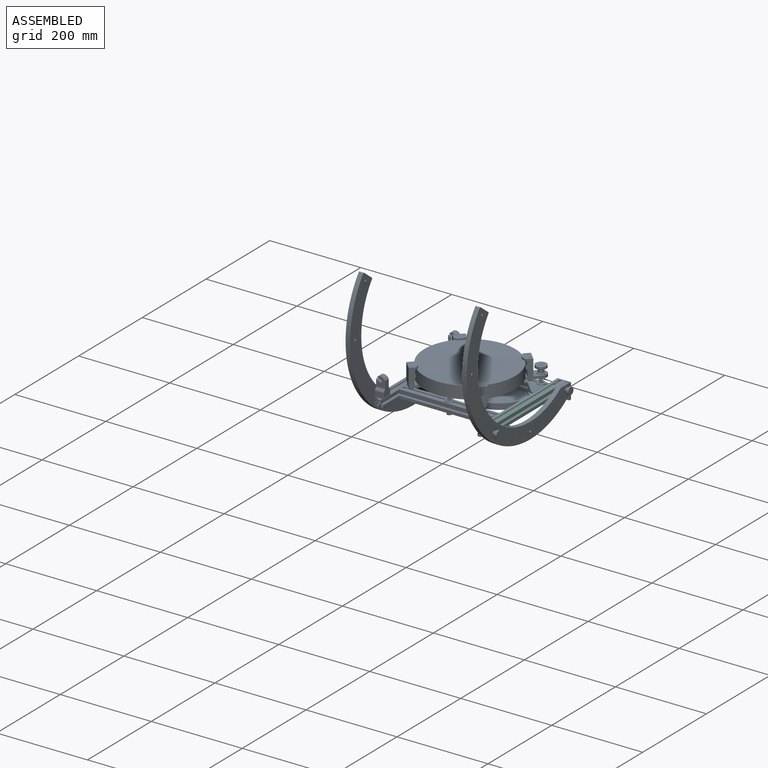
[diagram: assembled view]
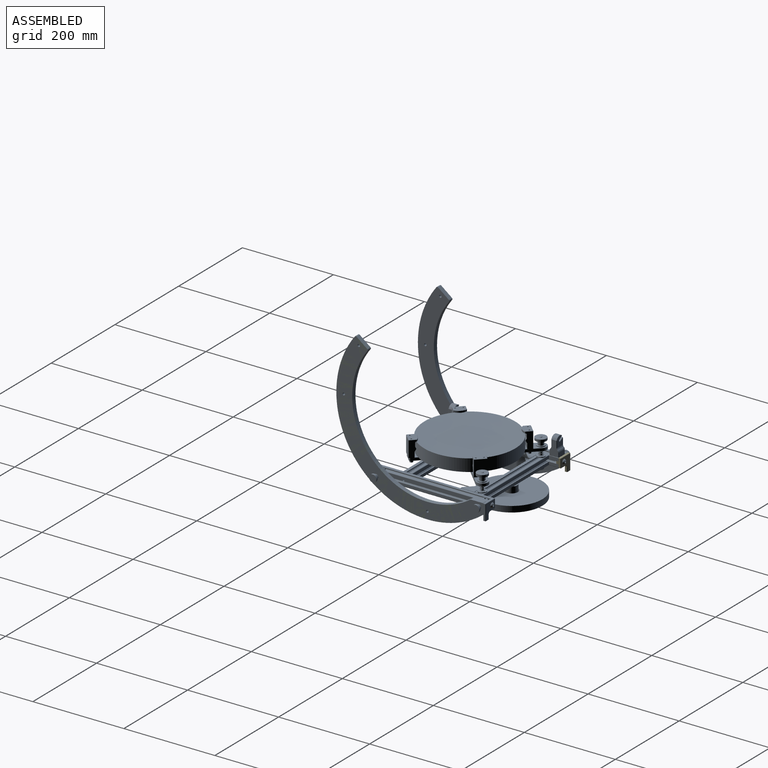
[diagram: assembled view, second angle]
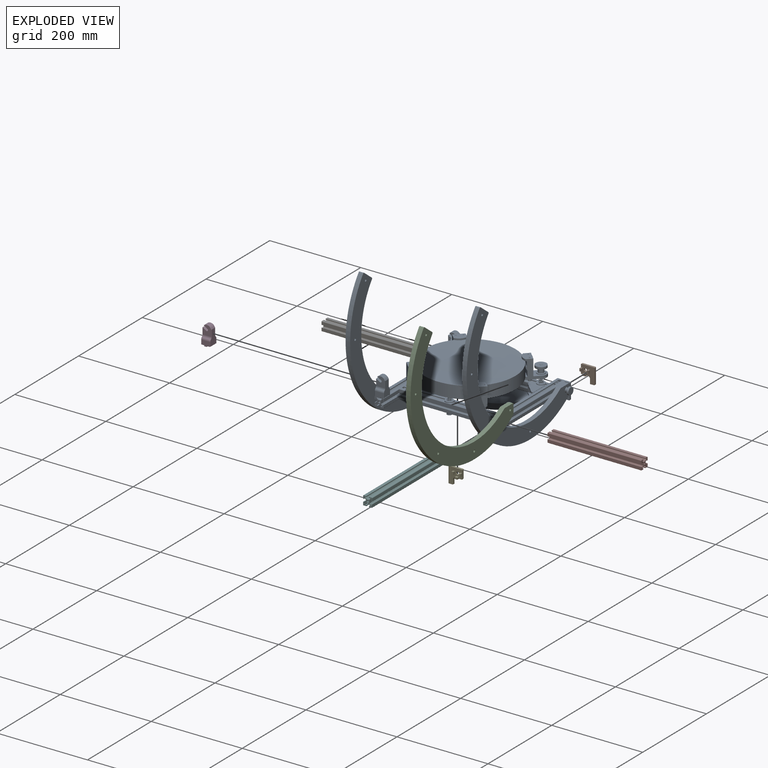
[diagram: exploded view]
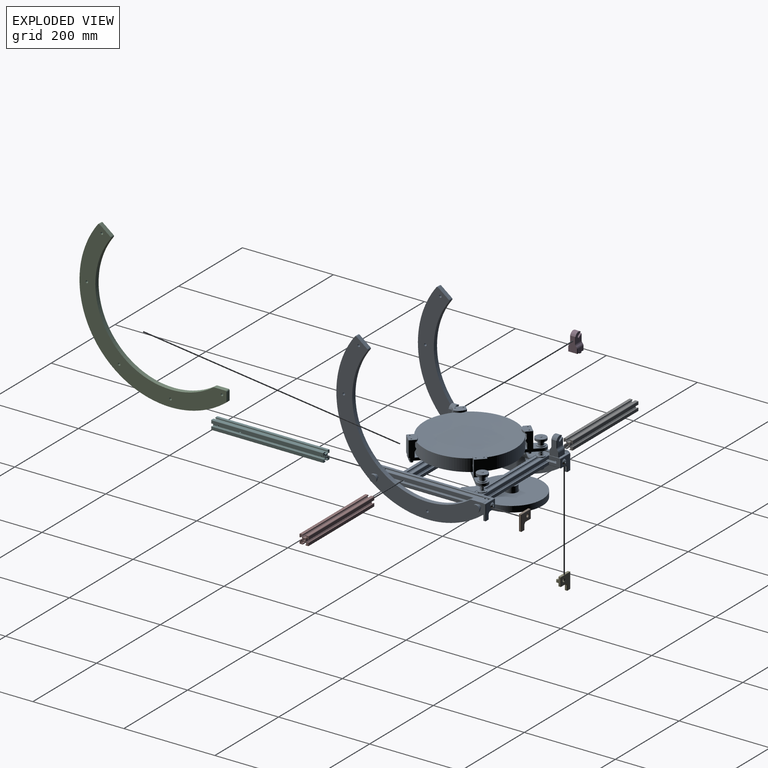
[diagram: exploded view, second angle]
FCSTD DOCUMENT  (FreeCAD 0.21RUnknown)
Label: Primary
License: All rights reserved
LicenseURL: http://en.wikipedia.org/wiki/All_rights_reserved
objects: App::Link×35, PartDesign::CoordinateSystem×34, Part::FeaturePython×26, Sketcher::SketchObject×16, PartDesign::Body×7, PartDesign::Pad×6, PartDesign::Plane×4, PartDesign::Hole×4, PartDesign::Pocket×4, App::DocumentObjectGroup×3, PartDesign::FeatureBase×2, PartDesign::Chamfer×2, App::FeaturePython×1, Part::Mirroring×1, App::Part×1
note: 122 computed .brp shape members not serialized (recipe doc carries the construction recipe); baked Part::Feature solids carry a one-line shape summary decoded from their .brp
EXTERNAL_REF file=Common.FCStd obj=Spreadsheet
EXTERNAL_REF file=PrimaryMirrorCell.FCStd obj=LCS_Origin
EXTERNAL_REF file=PrimaryMirrorCell.FCStd obj=Assembly
EXTERNAL_REF file=PrimaryMirrorCell.FCStd obj=LCS_PrimaryCell_Base
EXTERNAL_REF file=Common.FCStd obj=Local_CS097
EXTERNAL_REF file=Common.FCStd obj=Body038
EXTERNAL_REF file=Common.FCStd obj=Local_CS100
EXTERNAL_REF file=Common.FCStd obj=Body039
EXTERNAL_REF file=Common.FCStd obj=Local_CS108
EXTERNAL_REF file=Common.FCStd obj=Local_CS109
EXTERNAL_REF file=Common.FCStd obj=Local_CS191
EXTERNAL_REF file=Common.FCStd obj=Body022010
EXTERNAL_REF file=Common.FCStd obj=Local_CS234
EXTERNAL_REF file=Common.FCStd obj=Body022030
EXTERNAL_REF file=Common.FCStd obj=Local_CS098
EXTERNAL_REF file=Common.FCStd obj=Local_CS099
EXTERNAL_REF file=PrimaryMirrorCell.FCStd obj=LCS_SecondaryMirrorFace
EXTERNAL_REF file=Common.FCStd obj=Local_CS235
EXTERNAL_REF file=Common.FCStd obj=Body022032
EXTERNAL_REF file=Common.FCStd obj=Local_CS209
EXTERNAL_REF file=Common.FCStd obj=Body022019
EXTERNAL_REF file=Common.FCStd obj=Local_CS211
EXTERNAL_REF file=Common.FCStd obj=Local_CS218
EXTERNAL_REF file=Common.FCStd obj=Body017
EXTERNAL_REF file=Common.FCStd obj=Local_CS210

FEATURE [Sketcher::SketchObject] Sketch004  label="RockerRail_Base_Sketch"
  FullyConstrained = true
  MapMode = 5
  Placement = pos=(0,0,0) rot=(0.57735,0.57735,0.57735;2.0944rad)
  Support = -> [YZ_Plane011]
  expr: Constraints[12] = <<Common>>#<<Parameters>>.bolt_y - 10
  expr: Constraints[19] = <<Common>>#<<Parameters>>.pri_fillet
  expr: Constraints[1] = <<Common>>#<<Parameters>>.rail_dia
  expr: Constraints[35] = <<Common>>#<<Parameters>>.rail_dia - <<Common>>#<<Parameters>>.rail_height * 2
  expr: Constraints[36] = <<Common>>#<<Parameters>>.datum_lowercell - <<Common>>#<<Parameters>>.datum_rocker_z + 10
  expr: Constraints[40] = <<Common>>#<<Parameters>>.boxsize_y
  expr: Constraints[8] = <<Common>>#<<Parameters>>.boxsize_y
  sketch-geometry (16):
    g0: ArcOfCircle CenterX=0 CenterY=0 CenterZ=0 NormalX=0 NormalY=0 NormalZ=1 AngleXU=0 Radius=200 StartAngle=2.49187 EndAngle=5.36861
    g1: Circle CenterX=0 CenterY=0 CenterZ=0 NormalX=0 NormalY=0 NormalZ=1 AngleXU=0 Radius=165
    g2: LineSegment StartX=-155.722 StartY=121.453 StartZ=0 EndX=-132.064 EndY=103.001 EndZ=0
    g3: ArcOfCircle CenterX=0 CenterY=0 CenterZ=0 NormalX=0 NormalY=0 NormalZ=1 AngleXU=0 Radius=165 StartAngle=2.49413 EndAngle=5.32021
    g4: LineSegment StartX=95.6556 StartY=-135 StartZ=0 EndX=120.5 EndY=-135 EndZ=0
    g5: LineSegment StartX=123 StartY=-156.48 StartZ=0 EndX=123 EndY=-137.5 EndZ=0
    g6: LineSegment StartX=-123 StartY=-157.705 StartZ=0 EndX=123 EndY=-157.705 EndZ=0
    g7: LineSegment StartX=103 StartY=-157.705 StartZ=0 EndX=103 EndY=-128.903 EndZ=0
    g8: LineSegment StartX=0 StartY=0 StartZ=0 EndX=123 EndY=-135 EndZ=0
    g9: ArcOfCircle CenterX=120.5 CenterY=-137.5 CenterZ=0 NormalX=0 NormalY=0 NormalZ=1 AngleXU=0 Radius=2.5 StartAngle=-1.8e-15 EndAngle=1.5708
    g10: GeomPoint X=123 Y=-135 Z=0
    g11: ArcOfCircle CenterX=120.5 CenterY=-156.48 CenterZ=0 NormalX=0 NormalY=0 NormalZ=1 AngleXU=0 Radius=2.5 StartAngle=5.36861 EndAngle=6.28319
    g12: ArcOfCircle CenterX=-157.259 CenterY=119.481 CenterZ=0 NormalX=0 NormalY=0 NormalZ=1 AngleXU=0 Radius=2.5 StartAngle=0.90841 EndAngle=2.49187
    g13: ArcOfCircle CenterX=-133.601 CenterY=101.03 CenterZ=0 NormalX=0 NormalY=0 NormalZ=1 AngleXU=0 Radius=2.5 StartAngle=5.63573 EndAngle=7.1916
    g14: ArcOfCircle CenterX=95.6556 CenterY=-137.5 CenterZ=0 NormalX=0 NormalY=0 NormalZ=1 AngleXU=0 Radius=2.5 StartAngle=1.5708 EndAngle=2.17862
    g15: LineSegment StartX=-157.705 StartY=123 StartZ=0 EndX=-157.705 EndY=-123 EndZ=0
  constraints (42):
    c: Coincident(g0,g-1)
    c: Diameter(g0) = 400
    c: Coincident(g1,g0)
    c: PointOnObject(g0,g2)
    c: Coincident(g3,g0)
    c: Horizontal(g4)
    c: Vertical(g5)
    c: Symmetric(g6,g6,g-2)
    c: DistanceX(g6,g6) = 246
    c: PointOnObject(g7,g6)
    c: Vertical(g7)
    c: PointOnObject(g7,g1)
    c: DistanceX(g7) = 103
    c: Coincident(g8,g0)
    c: Coincident(g8,g10)
    c: PointOnObject(g10,g4)
    c: PointOnObject(g10,g5)
    c: Tangent(g4,g9) = 1.5708
    c: Tangent(g5,g9) = -1.5708
    c: Radius(g9) = 2.5
    c: Tangent(g5,g11) = -1.5708
    c: Tangent(g0,g11) = -1.5708
    c: Equal(g11,g9)
    c: PointOnObject(g6,g5)
    c: Tangent(g2,g12) = 1.5708
    c: Tangent(g0,g12) = -1.5708
    c: Equal(g12,g9)
    c: Tangent(g2,g13) = 1.5708
    c: Tangent(g3,g13) = 1.5708
    c: Equal(g12,g13)
    c: PointOnObject(g3,g1)
    c: Tangent(g4,g14) = 1.5708
    c: Tangent(g3,g14) = 1.5708
    c: Equal(g14,g9)
    c: PointOnObject(g6,g0)
    c: Diameter(g1) = 330
    c: DistanceY(g4) = -135
    c: PointOnObject(g15,g0)
    c: PointOnObject(g15,g0)
    c: Vertical(g15)
    c: DistanceY(g15,g15) = 246
    c: PointOnObject(g15,g2)
FEATURE [PartDesign::Plane] DatumPlane  label="DatumPlane_RockerBase_OuterFace"
  AttachmentOffset = pos=(0,0,5) rot=(0,0,1;0rad)
  Length = 386.928
  MapMode = 5
  Placement = pos=(5,-1.1e-15,1.1e-15) rot=(0.57735,0.57735,0.57735;2.0944rad)
  ResizeMode = 0
  Support = -> [YZ_Plane011]
  Width = 385.995
  expr: .AttachmentOffset.Base.z = <<Common>>#<<Parameters>>.rail_width / 2
FEATURE [PartDesign::Pad] Pad008  label="RockerRail_Base"
  Direction = (1,-2e-16,3e-16)
  Length = 10
  Length2 = 100
  Midplane = true
  Placement = pos=(0,0,0) rot=(0.57735,0.57735,0.57735;2.0944rad)
  Profile = -> Sketch004
  Type = 0
  expr: Length = <<Common>>#<<Parameters>>.rail_width
FEATURE [Sketcher::SketchObject] Sketch007  label="RockerRail_MountHoles_Sketch"
  ExternalGeometry = -> [Pad008]
  FullyConstrained = true
  MapMode = 5
  Placement = pos=(5,-1.1e-15,1.1e-15) rot=(0.57735,0.57735,0.57735;2.0944rad)
  Support = -> [DatumPlane]
  expr: Constraints[1] = <<Common>>#<<Parameters>>.bolt_y
  expr: Constraints[6] = <<Common>>#<<Parameters>>.datum_lowercell - <<Common>>#<<Parameters>>.datum_rocker_z
  sketch-geometry (8):
    g0: LineSegment StartX=-113 StartY=-145 StartZ=0 EndX=113 EndY=-145 EndZ=0
    g1: Circle CenterX=-113 CenterY=-145 CenterZ=0 NormalX=0 NormalY=0 NormalZ=1 AngleXU=0 Radius=2.5
    g2: Circle CenterX=113 CenterY=-145 CenterZ=0 NormalX=0 NormalY=0 NormalZ=1 AngleXU=0 Radius=2.5
    g3: Circle CenterX=0 CenterY=0 CenterZ=0 NormalX=0 NormalY=0 NormalZ=1 AngleXU=0 Radius=183.831
    g4: Circle CenterX=-150.891 CenterY=105.004 CenterZ=0 NormalX=0 NormalY=0 NormalZ=1 AngleXU=0 Radius=10
    g5: Circle CenterX=0 CenterY=-183.831 CenterZ=0 NormalX=0 NormalY=0 NormalZ=1 AngleXU=0 Radius=2.5
    g6: Circle CenterX=-183.831 CenterY=0 CenterZ=0 NormalX=0 NormalY=0 NormalZ=1 AngleXU=0 Radius=2.5
    g7: Circle CenterX=-150.891 CenterY=105.004 CenterZ=0 NormalX=0 NormalY=0 NormalZ=1 AngleXU=0 Radius=2.5
  constraints (22):
    c: Symmetric(g0,g0,g-2)
    c: DistanceX(g0) = 113
    c: Coincident(g1,g0)
    c: Coincident(g2,g0)
    c: Diameter(g2) = 5
    c: Equal(g2,g1)
    c: DistanceY(g2) = -145
    c: Distance(g-1,g1) = 183.831
    c: Coincident(g3,g-1)
    c: PointOnObject(g0,g3)
    c: PointOnObject(g4,g3)
    c: Tangent(g4,g-3)
    c: Radius(g4) = 10
    c: PointOnObject(g5,g-2)
    c: PointOnObject(g6,g3)
    c: Coincident(g7,g4)
    c: Equal(g7,g6)
    c: Equal(g6,g5)
    c: Equal(g5,g2)
    c: PointOnObject(g6,g-1)
    c: PointOnObject(g5,g3)
    c: Radius(g3) = 183.831
FEATURE [Sketcher::SketchObject] Sketch044  label="Frame_P_Sketch"
  FullyConstrained = true
  MapMode = 5
  Placement = pos=(0,0,0) rot=(1,0,0;1.5708rad)
  Support = -> [XZ_Plane035]
  sketch-geometry (75):
    g0: LineSegment StartX=3 StartY=10 StartZ=0 EndX=3 EndY=8 EndZ=0
    g1: LineSegment StartX=3 StartY=8 StartZ=0 EndX=6 EndY=8 EndZ=0
    g2: LineSegment StartX=2.58579 StartY=4 StartZ=0 EndX=-2.58579 EndY=4 EndZ=0
    g3: LineSegment StartX=-6 StartY=8 StartZ=0 EndX=-3 EndY=8 EndZ=0
    g4: LineSegment StartX=-3 StartY=8 StartZ=0 EndX=-3 EndY=10 EndZ=0
    g5: Circle CenterX=0 CenterY=0 CenterZ=0 NormalX=0 NormalY=0 NormalZ=1 AngleXU=0 Radius=2.1
    g6: LineSegment StartX=-10 StartY=3 StartZ=0 EndX=-8 EndY=3 EndZ=0
    g7: LineSegment StartX=-8 StartY=3 StartZ=0 EndX=-8 EndY=6 EndZ=0
    g8: LineSegment StartX=-4 StartY=2.58579 StartZ=0 EndX=-4 EndY=-2.58579 EndZ=0
    g9: LineSegment StartX=-8 StartY=-6 StartZ=0 EndX=-8 EndY=-3 EndZ=0
    g10: LineSegment StartX=-8 StartY=-3 StartZ=0 EndX=-10 EndY=-3 EndZ=0
    g11: LineSegment StartX=-3 StartY=-10 StartZ=0 EndX=-3 EndY=-8 EndZ=0
    g12: LineSegment StartX=-3 StartY=-8 StartZ=0 EndX=-6 EndY=-8 EndZ=0
    g13: LineSegment StartX=-2.58579 StartY=-4 StartZ=0 EndX=2.58579 EndY=-4 EndZ=0
    g14: LineSegment StartX=6 StartY=-8 StartZ=0 EndX=3 EndY=-8 EndZ=0
    g15: LineSegment StartX=3 StartY=-8 StartZ=0 EndX=3 EndY=-10 EndZ=0
    g16: LineSegment StartX=10 StartY=-3 StartZ=0 EndX=8 EndY=-3 EndZ=0
    g17: LineSegment StartX=8 StartY=-3 StartZ=0 EndX=8 EndY=-6 EndZ=0
    g18: LineSegment StartX=8 StartY=-6 StartZ=0 EndX=7.41421 EndY=-6 EndZ=0
    g19: LineSegment StartX=7.41421 StartY=-6 StartZ=0 EndX=4 EndY=-2.58579 EndZ=0
    g20: LineSegment StartX=4 StartY=-2.58579 StartZ=0 EndX=4 EndY=2.58579 EndZ=0
    g21: LineSegment StartX=4 StartY=2.58579 StartZ=0 EndX=7.41421 EndY=6 EndZ=0
    g22: LineSegment StartX=7.41421 StartY=6 StartZ=0 EndX=8 EndY=6 EndZ=0
    g23: LineSegment StartX=8 StartY=6 StartZ=0 EndX=8 EndY=3 EndZ=0
    g24: LineSegment StartX=8 StartY=3 StartZ=0 EndX=10 EndY=3 EndZ=0
    g25: LineSegment StartX=6 StartY=8 StartZ=0 EndX=6 EndY=7.41421 EndZ=0
    g26: LineSegment StartX=6 StartY=7.41421 StartZ=0 EndX=2.58579 EndY=4 EndZ=0
    g27: LineSegment StartX=-2.58579 StartY=4 StartZ=0 EndX=-6 EndY=7.41421 EndZ=0
    g28: LineSegment StartX=-6 StartY=7.41421 StartZ=0 EndX=-6 EndY=8 EndZ=0
    g29: LineSegment StartX=-8 StartY=6 StartZ=0 EndX=-7.41421 EndY=6 EndZ=0
    g30: LineSegment StartX=-7.41421 StartY=6 StartZ=0 EndX=-4 EndY=2.58579 EndZ=0
    g31: LineSegment StartX=-4 StartY=-2.58579 StartZ=0 EndX=-7.41421 EndY=-6 EndZ=0
    g32: LineSegment StartX=-7.41421 StartY=-6 StartZ=0 EndX=-8 EndY=-6 EndZ=0
    g33: LineSegment StartX=-2.58579 StartY=-4 StartZ=0 EndX=-6 EndY=-7.41421 EndZ=0
    g34: LineSegment StartX=-6 StartY=-7.41421 StartZ=0 EndX=-6 EndY=-8 EndZ=0
    g35: LineSegment StartX=2.58579 StartY=-4 StartZ=0 EndX=6 EndY=-7.41421 EndZ=0
    g36: LineSegment StartX=6 StartY=-7.41421 StartZ=0 EndX=6 EndY=-8 EndZ=0
    g37: LineSegment StartX=-4 StartY=2.58579 StartZ=0 EndX=-2.58579 EndY=4 EndZ=0
    g38: LineSegment StartX=-7.41421 StartY=7.41421 StartZ=0 EndX=7.41421 EndY=7.41421 EndZ=0
    g39: LineSegment StartX=7.41421 StartY=7.41421 StartZ=0 EndX=7.41421 EndY=-7.41421 EndZ=0
    g40: LineSegment StartX=7.41421 StartY=-7.41421 StartZ=0 EndX=-7.41421 EndY=-7.41421 EndZ=0
    g41: LineSegment StartX=-7.41421 StartY=-7.41421 StartZ=0 EndX=-7.41421 EndY=7.41421 EndZ=0
    g42: LineSegment StartX=-10 StartY=10 StartZ=0 EndX=10 EndY=10 EndZ=0
    g43: LineSegment StartX=10 StartY=10 StartZ=0 EndX=10 EndY=-10 EndZ=0
    g44: LineSegment StartX=10 StartY=-10 StartZ=0 EndX=-10 EndY=-10 EndZ=0
    g45: LineSegment StartX=-10 StartY=-10 StartZ=0 EndX=-10 EndY=10 EndZ=0
    g46: LineSegment StartX=4 StartY=4 StartZ=0 EndX=-4 EndY=4 EndZ=0
    g47: LineSegment StartX=-4 StartY=4 StartZ=0 EndX=-4 EndY=-4 EndZ=0
    g48: LineSegment StartX=-4 StartY=-4 StartZ=0 EndX=4 EndY=-4 EndZ=0
    g49: LineSegment StartX=4 StartY=-4 StartZ=0 EndX=4 EndY=4 EndZ=0
    g50: LineSegment StartX=-10 StartY=-10 StartZ=0 EndX=10 EndY=10 EndZ=0
    g51: LineSegment StartX=-10 StartY=10 StartZ=0 EndX=10 EndY=-10 EndZ=0
    g52: LineSegment StartX=2.58579 StartY=4 StartZ=0 EndX=4 EndY=2.58579 EndZ=0
    g53: LineSegment StartX=2.58579 StartY=-4 StartZ=0 EndX=4 EndY=-2.58579 EndZ=0
    g54: LineSegment StartX=-4 StartY=-2.58579 StartZ=0 EndX=-2.58579 EndY=-4 EndZ=0
    g55: LineSegment StartX=10 StartY=3 StartZ=0 EndX=3 EndY=10 EndZ=0
    g56: LineSegment StartX=-3 StartY=10 StartZ=0 EndX=-10 EndY=3 EndZ=0
    g57: LineSegment StartX=-10 StartY=-3 StartZ=0 EndX=-3 EndY=-10 EndZ=0
    g58: LineSegment StartX=3 StartY=-10 StartZ=0 EndX=10 EndY=-3 EndZ=0
    g59: ArcOfCircle CenterX=-9 CenterY=9 CenterZ=0 NormalX=0 NormalY=0 NormalZ=1 AngleXU=0 Radius=1 StartAngle=1.57078 EndAngle=3.14161
    g60: ArcOfCircle CenterX=9 CenterY=9 CenterZ=0 NormalX=0 NormalY=0 NormalZ=1 AngleXU=0 Radius=1 StartAngle=6.28316 EndAngle=7.854
    g61: ArcOfCircle CenterX=9 CenterY=-9 CenterZ=0 NormalX=0 NormalY=0 NormalZ=1 AngleXU=0 Radius=1 StartAngle=4.71238 EndAngle=6.28319
    g62: ArcOfCircle CenterX=-9 CenterY=-9 CenterZ=0 NormalX=0 NormalY=0 NormalZ=1 AngleXU=0 Radius=1 StartAngle=3.14159 EndAngle=4.71241
    g63: LineSegment StartX=-10 StartY=-9 StartZ=0 EndX=10 EndY=-9 EndZ=0
    g64: LineSegment StartX=-10 StartY=8.99998 StartZ=0 EndX=10 EndY=8.99998 EndZ=0
    g65: LineSegment StartX=-8.99998 StartY=10 StartZ=0 EndX=-8.99998 EndY=-10 EndZ=0
    g66: LineSegment StartX=8.99999 StartY=10 StartZ=0 EndX=8.99999 EndY=-10 EndZ=0
    g67: LineSegment StartX=-10 StartY=8.99998 StartZ=0 EndX=-10 EndY=3 EndZ=0
    g68: LineSegment StartX=-10 StartY=-3 StartZ=0 EndX=-10 EndY=-9 EndZ=0
    g69: LineSegment StartX=-8.99998 StartY=10 StartZ=0 EndX=-3 EndY=10 EndZ=0
    g70: LineSegment StartX=8.99999 StartY=10 StartZ=0 EndX=3 EndY=10 EndZ=0
    g71: LineSegment StartX=10 StartY=8.99998 StartZ=0 EndX=10 EndY=3 EndZ=0
    g72: LineSegment StartX=10 StartY=-9 StartZ=0 EndX=10 EndY=-3 EndZ=0
    g73: LineSegment StartX=8.99999 StartY=-10 StartZ=0 EndX=3 EndY=-10 EndZ=0
    g74: LineSegment StartX=-8.99998 StartY=-10 StartZ=0 EndX=-3 EndY=-10 EndZ=0
  constraints (212):
    c: Diameter(g5) = 4.2
    c: Coincident(g42,g43)
    c: Coincident(g43,g44)
    c: Coincident(g44,g45)
    c: Coincident(g45,g42)
    c: Horizontal(g44)
    c: Vertical(g45)
    c: Symmetric(g42,g43,g-1)
    c: Symmetric(g42,g42,g-2)
    c: Coincident(g5,g-1)
    c: Coincident(g38,g41)
    c: Coincident(g7,g29)
    c: Coincident(g29,g30)
    c: Coincident(g27,g28)
    c: Coincident(g3,g28)
    c: Coincident(g3,g4)
    c: Coincident(g6,g7)
    c: Coincident(g2,g27)
    c: Coincident(g2,g37)
    c: Coincident(g8,g30)
    c: Coincident(g8,g37)
    c: Coincident(g8,g31)
    c: Coincident(g13,g33)
    c: Coincident(g9,g10)
    c: Coincident(g11,g12)
    c: Coincident(g12,g34)
    c: Coincident(g33,g34)
    c: Coincident(g40,g41)
    c: Coincident(g31,g32)
    c: Coincident(g9,g32)
    c: Coincident(g14,g36)
    c: Coincident(g17,g18)
    c: Coincident(g39,g40)
    c: Coincident(g18,g19)
    c: Coincident(g35,g36)
    c: Coincident(g13,g35)
    c: Coincident(g19,g20)
    c: Coincident(g16,g17)
    c: Coincident(g0,g1)
    c: Coincident(g1,g25)
    c: Coincident(g22,g23)
    c: Coincident(g23,g24)
    c: Coincident(g21,g22)
    c: Coincident(g38,g39)
    c: Coincident(g25,g26)
    c: Coincident(g2,g26)
    c: Coincident(g20,g21)
    c: Horizontal(g1)
    c: Horizontal(g3)
    c: Horizontal(g12)
    c: Horizontal(g14)
    c: Vertical(g34)
    c: Vertical(g11)
    c: Vertical(g15)
    c: Vertical(g36)
    c: Vertical(g4)
    c: Vertical(g0)
    c: Vertical(g28)
    c: Vertical(g25)
    c: Vertical(g7)
    c: Vertical(g9)
    c: Vertical(g23)
    c: Vertical(g17)
    c: Horizontal(g29)
    c: Horizontal(g6)
    c: Horizontal(g10)
    c: Horizontal(g32)
    c: Horizontal(g22)
    c: Horizontal(g24)
    c: Horizontal(g16)
    c: Horizontal(g18)
    c: Parallel(g30,g27)
    c: Parallel(g27,g35)
    c: Parallel(g35,g19)
    c: Parallel(g21,g26)
    c: Parallel(g31,g33)
    c: Coincident(g46,g47)
    c: Coincident(g47,g48)
    c: Coincident(g48,g49)
    c: Coincident(g49,g46)
    c: Horizontal(g46)
    c: Horizontal(g48)
    c: Vertical(g47)
    c: Vertical(g49)
    c: Horizontal(g2)
    c: Horizontal(g13)
    c: Vertical(g8)
    c: Vertical(g20)
    c: PointOnObject(g2,g46)
    c: PointOnObject(g19,g49)
    c: PointOnObject(g13,g48)
    c: PointOnObject(g8,g47)
    c: Coincident(g50,g44)
    c: Coincident(g50,g42)
    c: Coincident(g51,g42)
    c: Coincident(g51,g43)
    c: PointOnObject(g39,g51)
    c: PointOnObject(g38,g50)
    c: PointOnObject(g38,g51)
    c: Vertical(g39)
    c: Vertical(g41)
    c: Horizontal(g38)
    c: Horizontal(g40)
    c: PointOnObject(g46,g50)
    c: PointOnObject(g46,g51)
    c: PointOnObject(g48,g51)
    c: Parallel(g27,g51)
    c: Parallel(g26,g50)
    c: Perpendicular(g51,g37)
    c: Parallel(g31,g26)
    c: PointOnObject(g4,g42)
    c: PointOnObject(g24,g43)
    c: PointOnObject(g6,g45)
    c: PointOnObject(g10,g45)
    c: PointOnObject(g29,g41)
    c: PointOnObject(g31,g41)
    c: PointOnObject(g33,g40)
    c: PointOnObject(g35,g40)
    c: PointOnObject(g18,g39)
    c: PointOnObject(g21,g39)
    c: PointOnObject(g25,g38)
    c: PointOnObject(g27,g38)
    c: Coincident(g52,g2)
    c: Coincident(g52,g20)
    c: Coincident(g53,g13)
    c: Coincident(g53,g19)
    c: Coincident(g54,g8)
    c: Coincident(g54,g13)
    c: Perpendicular(g50,g54)
    c: Perpendicular(g51,g53)
    c: Perpendicular(g50,g52)
    c: Equal(g37,g52)
    c: Equal(g52,g53)
    c: Equal(g53,g54)
    c: Distance(g37) = 2
    c: Coincident(g14,g15)
    c: PointOnObject(g6,g24)
    c: PointOnObject(g9,g16)
    c: PointOnObject(g11,g4)
    c: PointOnObject(g14,g0)
    c: PointOnObject(g11,g44)
    c: PointOnObject(g15,g44)
    c: DistanceX(g42) = 10
    c: DistanceY(g49,g49) = 8
    c: DistanceY(g18,g21) = 12
    c: Coincident(g56,g4)
    c: Coincident(g57,g10)
    c: Coincident(g58,g15)
    c: Perpendicular(g51,g58)
    c: Perpendicular(g50,g55)
    c: Perpendicular(g51,g56)
    c: Equal(g58,g57)
    c: Equal(g57,g55)
    c: DistanceY(g16,g24) = 6
    c: Equal(g42,g43)
    c: Coincident(g55,g0)
    c: Coincident(g55,g24)
    c: Coincident(g56,g6)
    c: Coincident(g11,g57)
    c: Coincident(g16,g58)
    c: DistanceX(g6,g6) = 2
    c: Equal(g6,g10)
    c: Equal(g10,g24)
    c: Equal(g24,g16)
    c: Equal(g16,g15)
    c: Equal(g15,g11)
    c: Equal(g11,g4)
    c: Equal(g4,g0)
    c: PointOnObject(g59,g51)
    c: PointOnObject(g59,g45)
    c: PointOnObject(g59,g42)
    c: PointOnObject(g60,g42)
    c: PointOnObject(g60,g43)
    c: PointOnObject(g61,g51)
    c: PointOnObject(g61,g43)
    c: PointOnObject(g61,g44)
    c: PointOnObject(g62,g50)
    c: PointOnObject(g62,g44)
    c: PointOnObject(g62,g45)
    c: Radius(g62) = 1
    c: Equal(g62,g59)
    c: Equal(g59,g60)
    c: Equal(g60,g61)
    c: Coincident(g63,g62)
    c: Coincident(g63,g61)
    c: Horizontal(g63)
    c: Coincident(g64,g59)
    c: Coincident(g64,g60)
    c: Horizontal(g64)
    c: Coincident(g65,g59)
    c: Coincident(g65,g62)
    c: Vertical(g65)
    c: Coincident(g66,g60)
    c: Coincident(g66,g61)
    c: Vertical(g66)
    c: PointOnObject(g62,g63)
    c: Coincident(g67,g59)
    c: Coincident(g67,g6)
    c: Coincident(g68,g10)
    c: Coincident(g68,g62)
    c: Coincident(g69,g59)
    c: Coincident(g69,g4)
    c: Coincident(g70,g60)
    c: Coincident(g70,g0)
    c: Coincident(g71,g60)
    c: Coincident(g71,g24)
    c: Coincident(g72,g61)
    c: Coincident(g72,g16)
    c: Coincident(g73,g61)
    c: Coincident(g73,g15)
    c: Coincident(g74,g62)
    c: Coincident(g74,g11)
FEATURE [PartDesign::Pad] Pad023  label="Frame_P_Pad"
  Direction = (0,-1,-2e-16)
  Length = 246
  Length2 = 100
  Midplane = true
  Placement = pos=(0,0,0) rot=(1,0,0;1.5708rad)
  Profile = -> Sketch044
  Type = 0
  expr: Length = <<Common>>#<<Parameters>>.boxsize_y
FEATURE [Sketcher::SketchObject] Sketch045  label="Frame_A_Sketch"
  FullyConstrained = true
  MapMode = 5
  Placement = pos=(0,0,0) rot=(0.57735,0.57735,0.57735;2.0944rad)
  Support = -> [YZ_Plane036]
  sketch-geometry (75):
    g0: LineSegment StartX=3 StartY=10 StartZ=0 EndX=3 EndY=8 EndZ=0
    g1: LineSegment StartX=3 StartY=8 StartZ=0 EndX=6 EndY=8 EndZ=0
    g2: LineSegment StartX=2.58579 StartY=4 StartZ=0 EndX=-2.58579 EndY=4 EndZ=0
    g3: LineSegment StartX=-6 StartY=8 StartZ=0 EndX=-3 EndY=8 EndZ=0
    g4: LineSegment StartX=-3 StartY=8 StartZ=0 EndX=-3 EndY=10 EndZ=0
    g5: Circle CenterX=0 CenterY=0 CenterZ=0 NormalX=0 NormalY=0 NormalZ=1 AngleXU=0 Radius=2.1
    g6: LineSegment StartX=-10 StartY=3 StartZ=0 EndX=-8 EndY=3 EndZ=0
    g7: LineSegment StartX=-8 StartY=3 StartZ=0 EndX=-8 EndY=6 EndZ=0
    g8: LineSegment StartX=-4 StartY=2.58579 StartZ=0 EndX=-4 EndY=-2.58579 EndZ=0
    g9: LineSegment StartX=-8 StartY=-6 StartZ=0 EndX=-8 EndY=-3 EndZ=0
    g10: LineSegment StartX=-8 StartY=-3 StartZ=0 EndX=-10 EndY=-3 EndZ=0
    g11: LineSegment StartX=-3 StartY=-10 StartZ=0 EndX=-3 EndY=-8 EndZ=0
    g12: LineSegment StartX=-3 StartY=-8 StartZ=0 EndX=-6 EndY=-8 EndZ=0
    g13: LineSegment StartX=-2.58579 StartY=-4 StartZ=0 EndX=2.58579 EndY=-4 EndZ=0
    g14: LineSegment StartX=6 StartY=-8 StartZ=0 EndX=3 EndY=-8 EndZ=0
    g15: LineSegment StartX=3 StartY=-8 StartZ=0 EndX=3 EndY=-10 EndZ=0
    g16: LineSegment StartX=10 StartY=-3 StartZ=0 EndX=8 EndY=-3 EndZ=0
    g17: LineSegment StartX=8 StartY=-3 StartZ=0 EndX=8 EndY=-6 EndZ=0
    g18: LineSegment StartX=8 StartY=-6 StartZ=0 EndX=7.41421 EndY=-6 EndZ=0
    g19: LineSegment StartX=7.41421 StartY=-6 StartZ=0 EndX=4 EndY=-2.58579 EndZ=0
    g20: LineSegment StartX=4 StartY=-2.58579 StartZ=0 EndX=4 EndY=2.58579 EndZ=0
    g21: LineSegment StartX=4 StartY=2.58579 StartZ=0 EndX=7.41421 EndY=6 EndZ=0
    g22: LineSegment StartX=7.41421 StartY=6 StartZ=0 EndX=8 EndY=6 EndZ=0
    g23: LineSegment StartX=8 StartY=6 StartZ=0 EndX=8 EndY=3 EndZ=0
    g24: LineSegment StartX=8 StartY=3 StartZ=0 EndX=10 EndY=3 EndZ=0
    g25: LineSegment StartX=6 StartY=8 StartZ=0 EndX=6 EndY=7.41421 EndZ=0
    g26: LineSegment StartX=6 StartY=7.41421 StartZ=0 EndX=2.58579 EndY=4 EndZ=0
    g27: LineSegment StartX=-2.58579 StartY=4 StartZ=0 EndX=-6 EndY=7.41421 EndZ=0
    g28: LineSegment StartX=-6 StartY=7.41421 StartZ=0 EndX=-6 EndY=8 EndZ=0
    g29: LineSegment StartX=-8 StartY=6 StartZ=0 EndX=-7.41421 EndY=6 EndZ=0
    g30: LineSegment StartX=-7.41421 StartY=6 StartZ=0 EndX=-4 EndY=2.58579 EndZ=0
    g31: LineSegment StartX=-4 StartY=-2.58579 StartZ=0 EndX=-7.41421 EndY=-6 EndZ=0
    g32: LineSegment StartX=-7.41421 StartY=-6 StartZ=0 EndX=-8 EndY=-6 EndZ=0
    g33: LineSegment StartX=-2.58579 StartY=-4 StartZ=0 EndX=-6 EndY=-7.41421 EndZ=0
    g34: LineSegment StartX=-6 StartY=-7.41421 StartZ=0 EndX=-6 EndY=-8 EndZ=0
    g35: LineSegment StartX=2.58579 StartY=-4 StartZ=0 EndX=6 EndY=-7.41421 EndZ=0
    g36: LineSegment StartX=6 StartY=-7.41421 StartZ=0 EndX=6 EndY=-8 EndZ=0
    g37: LineSegment StartX=-4 StartY=2.58579 StartZ=0 EndX=-2.58579 EndY=4 EndZ=0
    g38: LineSegment StartX=-7.41421 StartY=7.41421 StartZ=0 EndX=7.41421 EndY=7.41421 EndZ=0
    g39: LineSegment StartX=7.41421 StartY=7.41421 StartZ=0 EndX=7.41421 EndY=-7.41421 EndZ=0
    g40: LineSegment StartX=7.41421 StartY=-7.41421 StartZ=0 EndX=-7.41421 EndY=-7.41421 EndZ=0
    g41: LineSegment StartX=-7.41421 StartY=-7.41421 StartZ=0 EndX=-7.41421 EndY=7.41421 EndZ=0
    g42: LineSegment StartX=-10 StartY=10 StartZ=0 EndX=10 EndY=10 EndZ=0
    g43: LineSegment StartX=10 StartY=10 StartZ=0 EndX=10 EndY=-10 EndZ=0
    g44: LineSegment StartX=10 StartY=-10 StartZ=0 EndX=-10 EndY=-10 EndZ=0
    g45: LineSegment StartX=-10 StartY=-10 StartZ=0 EndX=-10 EndY=10 EndZ=0
    g46: LineSegment StartX=4 StartY=4 StartZ=0 EndX=-4 EndY=4 EndZ=0
    g47: LineSegment StartX=-4 StartY=4 StartZ=0 EndX=-4 EndY=-4 EndZ=0
    g48: LineSegment StartX=-4 StartY=-4 StartZ=0 EndX=4 EndY=-4 EndZ=0
    g49: LineSegment StartX=4 StartY=-4 StartZ=0 EndX=4 EndY=4 EndZ=0
    g50: LineSegment StartX=-10 StartY=-10 StartZ=0 EndX=10 EndY=10 EndZ=0
    g51: LineSegment StartX=-10 StartY=10 StartZ=0 EndX=10 EndY=-10 EndZ=0
    g52: LineSegment StartX=2.58579 StartY=4 StartZ=0 EndX=4 EndY=2.58579 EndZ=0
    g53: LineSegment StartX=2.58579 StartY=-4 StartZ=0 EndX=4 EndY=-2.58579 EndZ=0
    g54: LineSegment StartX=-4 StartY=-2.58579 StartZ=0 EndX=-2.58579 EndY=-4 EndZ=0
    g55: LineSegment StartX=10 StartY=3 StartZ=0 EndX=3 EndY=10 EndZ=0
    g56: LineSegment StartX=-3 StartY=10 StartZ=0 EndX=-10 EndY=3 EndZ=0
    g57: LineSegment StartX=-10 StartY=-3 StartZ=0 EndX=-3 EndY=-10 EndZ=0
    g58: LineSegment StartX=3 StartY=-10 StartZ=0 EndX=10 EndY=-3 EndZ=0
    g59: ArcOfCircle CenterX=-9 CenterY=9 CenterZ=0 NormalX=0 NormalY=0 NormalZ=1 AngleXU=0 Radius=1 StartAngle=1.57078 EndAngle=3.14161
    g60: ArcOfCircle CenterX=9 CenterY=9 CenterZ=0 NormalX=0 NormalY=0 NormalZ=1 AngleXU=0 Radius=1 StartAngle=6.28316 EndAngle=7.854
    g61: ArcOfCircle CenterX=9 CenterY=-9 CenterZ=0 NormalX=0 NormalY=0 NormalZ=1 AngleXU=0 Radius=1 StartAngle=4.71238 EndAngle=6.28319
    g62: ArcOfCircle CenterX=-9 CenterY=-9 CenterZ=0 NormalX=0 NormalY=0 NormalZ=1 AngleXU=0 Radius=1 StartAngle=3.14159 EndAngle=4.71241
    g63: LineSegment StartX=-10 StartY=-9 StartZ=0 EndX=10 EndY=-9 EndZ=0
    g64: LineSegment StartX=-10 StartY=8.99998 StartZ=0 EndX=10 EndY=8.99998 EndZ=0
    g65: LineSegment StartX=-8.99998 StartY=10 StartZ=0 EndX=-8.99998 EndY=-10 EndZ=0
    g66: LineSegment StartX=8.99999 StartY=10 StartZ=0 EndX=8.99999 EndY=-10 EndZ=0
    g67: LineSegment StartX=-10 StartY=8.99998 StartZ=0 EndX=-10 EndY=3 EndZ=0
    g68: LineSegment StartX=-10 StartY=-3 StartZ=0 EndX=-10 EndY=-9 EndZ=0
    g69: LineSegment StartX=-8.99998 StartY=10 StartZ=0 EndX=-3 EndY=10 EndZ=0
    g70: LineSegment StartX=8.99999 StartY=10 StartZ=0 EndX=3 EndY=10 EndZ=0
    g71: LineSegment StartX=10 StartY=8.99998 StartZ=0 EndX=10 EndY=3 EndZ=0
    g72: LineSegment StartX=10 StartY=-9 StartZ=0 EndX=10 EndY=-3 EndZ=0
    g73: LineSegment StartX=8.99999 StartY=-10 StartZ=0 EndX=3 EndY=-10 EndZ=0
    g74: LineSegment StartX=-8.99998 StartY=-10 StartZ=0 EndX=-3 EndY=-10 EndZ=0
  constraints (212):
    c: Diameter(g5) = 4.2
    c: Coincident(g42,g43)
    c: Coincident(g43,g44)
    c: Coincident(g44,g45)
    c: Coincident(g45,g42)
    c: Horizontal(g44)
    c: Vertical(g45)
    c: Symmetric(g42,g43,g-1)
    c: Symmetric(g42,g42,g-2)
    c: Coincident(g5,g-1)
    c: Coincident(g38,g41)
    c: Coincident(g7,g29)
    c: Coincident(g29,g30)
    c: Coincident(g27,g28)
    c: Coincident(g3,g28)
    c: Coincident(g3,g4)
    c: Coincident(g6,g7)
    c: Coincident(g2,g27)
    c: Coincident(g2,g37)
    c: Coincident(g8,g30)
    c: Coincident(g8,g37)
    c: Coincident(g8,g31)
    c: Coincident(g13,g33)
    c: Coincident(g9,g10)
    c: Coincident(g11,g12)
    c: Coincident(g12,g34)
    c: Coincident(g33,g34)
    c: Coincident(g40,g41)
    c: Coincident(g31,g32)
    c: Coincident(g9,g32)
    c: Coincident(g14,g36)
    c: Coincident(g17,g18)
    c: Coincident(g39,g40)
    c: Coincident(g18,g19)
    c: Coincident(g35,g36)
    c: Coincident(g13,g35)
    c: Coincident(g19,g20)
    c: Coincident(g16,g17)
    c: Coincident(g0,g1)
    c: Coincident(g1,g25)
    c: Coincident(g22,g23)
    c: Coincident(g23,g24)
    c: Coincident(g21,g22)
    c: Coincident(g38,g39)
    c: Coincident(g25,g26)
    c: Coincident(g2,g26)
    c: Coincident(g20,g21)
    c: Horizontal(g1)
    c: Horizontal(g3)
    c: Horizontal(g12)
    c: Horizontal(g14)
    c: Vertical(g34)
    c: Vertical(g11)
    c: Vertical(g15)
    c: Vertical(g36)
    c: Vertical(g4)
    c: Vertical(g0)
    c: Vertical(g28)
    c: Vertical(g25)
    c: Vertical(g7)
    c: Vertical(g9)
    c: Vertical(g23)
    c: Vertical(g17)
    c: Horizontal(g29)
    c: Horizontal(g6)
    c: Horizontal(g10)
    c: Horizontal(g32)
    c: Horizontal(g22)
    c: Horizontal(g24)
    c: Horizontal(g16)
    c: Horizontal(g18)
    c: Parallel(g30,g27)
    c: Parallel(g27,g35)
    c: Parallel(g35,g19)
    c: Parallel(g21,g26)
    c: Parallel(g31,g33)
    c: Coincident(g46,g47)
    c: Coincident(g47,g48)
    c: Coincident(g48,g49)
    c: Coincident(g49,g46)
    c: Horizontal(g46)
    c: Horizontal(g48)
    c: Vertical(g47)
    c: Vertical(g49)
    c: Horizontal(g2)
    c: Horizontal(g13)
    c: Vertical(g8)
    c: Vertical(g20)
    c: PointOnObject(g2,g46)
    c: PointOnObject(g19,g49)
    c: PointOnObject(g13,g48)
    c: PointOnObject(g8,g47)
    c: Coincident(g50,g44)
    c: Coincident(g50,g42)
    c: Coincident(g51,g42)
    c: Coincident(g51,g43)
    c: PointOnObject(g39,g51)
    c: PointOnObject(g38,g50)
    c: PointOnObject(g38,g51)
    c: Vertical(g39)
    c: Vertical(g41)
    c: Horizontal(g38)
    c: Horizontal(g40)
    c: PointOnObject(g46,g50)
    c: PointOnObject(g46,g51)
    c: PointOnObject(g48,g51)
    c: Parallel(g27,g51)
    c: Parallel(g26,g50)
    c: Perpendicular(g51,g37)
    c: Parallel(g31,g26)
    c: PointOnObject(g4,g42)
    c: PointOnObject(g24,g43)
    c: PointOnObject(g6,g45)
    c: PointOnObject(g10,g45)
    c: PointOnObject(g29,g41)
    c: PointOnObject(g31,g41)
    c: PointOnObject(g33,g40)
    c: PointOnObject(g35,g40)
    c: PointOnObject(g18,g39)
    c: PointOnObject(g21,g39)
    c: PointOnObject(g25,g38)
    c: PointOnObject(g27,g38)
    c: Coincident(g52,g2)
    c: Coincident(g52,g20)
    c: Coincident(g53,g13)
    c: Coincident(g53,g19)
    c: Coincident(g54,g8)
    c: Coincident(g54,g13)
    c: Perpendicular(g50,g54)
    c: Perpendicular(g51,g53)
    c: Perpendicular(g50,g52)
    c: Equal(g37,g52)
    c: Equal(g52,g53)
    c: Equal(g53,g54)
    c: Distance(g37) = 2
    c: Coincident(g14,g15)
    c: PointOnObject(g6,g24)
    c: PointOnObject(g9,g16)
    c: PointOnObject(g11,g4)
    c: PointOnObject(g14,g0)
    c: PointOnObject(g11,g44)
    c: PointOnObject(g15,g44)
    c: DistanceX(g42) = 10
    c: DistanceY(g49,g49) = 8
    c: DistanceY(g18,g21) = 12
    c: Coincident(g56,g4)
    c: Coincident(g57,g10)
    c: Coincident(g58,g15)
    c: Perpendicular(g51,g58)
    c: Perpendicular(g50,g55)
    c: Perpendicular(g51,g56)
    c: Equal(g58,g57)
    c: Equal(g57,g55)
    c: DistanceY(g16,g24) = 6
    c: Equal(g42,g43)
    c: Coincident(g55,g0)
    c: Coincident(g55,g24)
    c: Coincident(g56,g6)
    c: Coincident(g11,g57)
    c: Coincident(g16,g58)
    c: DistanceX(g6,g6) = 2
    c: Equal(g6,g10)
    c: Equal(g10,g24)
    c: Equal(g24,g16)
    c: Equal(g16,g15)
    c: Equal(g15,g11)
    c: Equal(g11,g4)
    c: Equal(g4,g0)
    c: PointOnObject(g59,g51)
    c: PointOnObject(g59,g45)
    c: PointOnObject(g59,g42)
    c: PointOnObject(g60,g42)
    c: PointOnObject(g60,g43)
    c: PointOnObject(g61,g51)
    c: PointOnObject(g61,g43)
    c: PointOnObject(g61,g44)
    c: PointOnObject(g62,g50)
    c: PointOnObject(g62,g44)
    c: PointOnObject(g62,g45)
    c: Radius(g62) = 1
    c: Equal(g62,g59)
    c: Equal(g59,g60)
    c: Equal(g60,g61)
    c: Coincident(g63,g62)
    c: Coincident(g63,g61)
    c: Horizontal(g63)
    c: Coincident(g64,g59)
    c: Coincident(g64,g60)
    c: Horizontal(g64)
    c: Coincident(g65,g59)
    c: Coincident(g65,g62)
    c: Vertical(g65)
    c: Coincident(g66,g60)
    c: Coincident(g66,g61)
    c: Vertical(g66)
    c: PointOnObject(g62,g63)
    c: Coincident(g67,g59)
    c: Coincident(g67,g6)
    c: Coincident(g68,g10)
    c: Coincident(g68,g62)
    c: Coincident(g69,g59)
    c: Coincident(g69,g4)
    c: Coincident(g70,g60)
    c: Coincident(g70,g0)
    c: Coincident(g71,g60)
    c: Coincident(g71,g24)
    c: Coincident(g72,g61)
    c: Coincident(g72,g16)
    c: Coincident(g73,g61)
    c: Coincident(g73,g15)
    c: Coincident(g74,g62)
    c: Coincident(g74,g11)
FEATURE [PartDesign::Pad] Pad024  label="Frame_A_Pad"
  Direction = (1,-2e-16,3e-16)
  Length = 206
  Length2 = 100
  Midplane = true
  Placement = pos=(0,0,0) rot=(0.57735,0.57735,0.57735;2.0944rad)
  Profile = -> Sketch045
  Type = 0
  expr: Length = <<Common>>#<<Parameters>>.bolt_x * 2 - 20
FEATURE [PartDesign::Plane] DatumPlane009  label="DatumPlane_Frame_A_Top"
  AttachmentOffset = pos=(0,0,10) rot=(0,0,1;1.5708rad)
  Length = 70.2978
  MapMode = 5
  Placement = pos=(0,0,10) rot=(0,0,1;1.5708rad)
  ResizeMode = 0
  Support = -> [XY_Plane036]
  Width = 226.298
FEATURE [Sketcher::SketchObject] Sketch046  label="Frame_A_CollHoles_Sketch"
  FullyConstrained = true
  MapMode = 5
  Placement = pos=(0,0,10) rot=(0,0,1;1.5708rad)
  Support = -> [DatumPlane009]
  expr: Constraints[3] = <<Common>>#<<Parameters>>.collpos_y
  expr: Constraints[4] = <<Common>>#<<Parameters>>.collbolt
  sketch-geometry (3):
    g0: Circle CenterX=0 CenterY=0 CenterZ=0 NormalX=0 NormalY=0 NormalZ=1 AngleXU=0 Radius=3
    g1: Circle CenterX=0 CenterY=-92 CenterZ=0 NormalX=0 NormalY=0 NormalZ=1 AngleXU=0 Radius=3
    g2: Circle CenterX=0 CenterY=92 CenterZ=0 NormalX=0 NormalY=0 NormalZ=1 AngleXU=0 Radius=3
  constraints (7):
    c: Coincident(g0,g-1)
    c: PointOnObject(g1,g-2)
    c: Symmetric(g2,g1,g-1)
    c: DistanceY(g2) = 92
    c: Diameter(g0) = 6
    c: Equal(g0,g2)
    c: Equal(g0,g1)
FEATURE [PartDesign::Hole] Hole025  label="Frame_A_CollHoles"
  BaseFeature = -> Pad024
  CustomThreadClearance = 0
  Depth = 25
  DepthType = 1
  Diameter = 6.4
  DrillForDepth = false
  DrillPoint = 1
  DrillPointAngle = 118
  HoleCutCountersinkAngle = 90
  HoleCutCustomValues = false
  HoleCutDepth = 0
  HoleCutDiameter = 6.1
  HoleCutType = 0
  ModelThread = false
  Placement = pos=(0,0,0) rot=(0.57735,0.57735,0.57735;2.0944rad)
  Profile = -> Sketch046
  Tapered = false
  TaperedAngle = 90
  ThreadClass = 5
  ThreadDepth = 23.5
  ThreadDepthType = 0
  ThreadDirection = 0
  ThreadFit = 1
  ThreadSize = 14
  ThreadType = 1
  Threaded = false
  UseCustomThreadClearance = false
FEATURE [Sketcher::SketchObject] Sketch054  label="Frame_P_SideHoles_Sketch"
  ExternalGeometry = -> [Pad023]
  FullyConstrained = true
  MapMode = 5
  Placement = pos=(0,0,0) rot=(0.57735,0.57735,0.57735;2.0944rad)
  Support = -> [YZ_Plane035]
  expr: Constraints[1] = -<<Common>>#<<Parameters>>.cpointpos
  sketch-geometry (3):
    g0: Circle CenterX=-64 CenterY=0 CenterZ=0 NormalX=0 NormalY=0 NormalZ=1 AngleXU=0 Radius=2.5
    g1: Circle CenterX=-113 CenterY=0 CenterZ=0 NormalX=0 NormalY=0 NormalZ=1 AngleXU=0 Radius=2.5
    g2: Circle CenterX=113 CenterY=0 CenterZ=0 NormalX=0 NormalY=0 NormalZ=1 AngleXU=0 Radius=2.5
  constraints (9):
    c: PointOnObject(g0,g-1)
    c: DistanceX(g0) = -64
    c: Diameter(g0) = 5
    c: PointOnObject(g1,g-1)
    c: PointOnObject(g2,g-1)
    c: Equal(g2,g1)
    c: Equal(g1,g0)
    c: DistanceX(g-3,g1) = 10
    c: DistanceX(g2,g-4) = 10
FEATURE [PartDesign::Pocket] Pocket010  label="Frame_P_SideHoles"
  BaseFeature = -> Pad023
  Direction = (-1,2e-16,-3e-16)
  Length = 5
  Length2 = 100
  Midplane = true
  Placement = pos=(0,0,0) rot=(1,0,0;1.5708rad)
  Profile = -> Sketch054
  Type = 1
FEATURE [PartDesign::FeatureBase] Clone008  label="Frame_F_Clone"
  BaseFeature = -> Pad024
  Placement = pos=(0,0,0) rot=(0.57735,0.57735,0.57735;2.0944rad)
FEATURE [PartDesign::Plane] DatumPlane012  label="DatumPlane_Frame_F_Top"
  AttachmentOffset = pos=(0,0,10) rot=(0,0,1;0rad)
  Length = 226.298
  MapMode = 5
  Placement = pos=(0,0,10) rot=(0,0,1;0rad)
  ResizeMode = 0
  Support = -> [XY_Plane051]
  Width = 70.2978
FEATURE [Sketcher::SketchObject] Sketch059  label="Frame_F_CollHoles_Sketch"
  FullyConstrained = true
  MapMode = 5
  Placement = pos=(0,0,10) rot=(0,0,1;0rad)
  Support = -> [DatumPlane012]
  expr: Constraints[1] = <<Common>>#<<Parameters>>.collbolt
  sketch-geometry (1):
    g0: Circle CenterX=0 CenterY=0 CenterZ=0 NormalX=0 NormalY=0 NormalZ=1 AngleXU=0 Radius=3
  constraints (2):
    c: Coincident(g0,g-1)
    c: Diameter(g0) = 6
FEATURE [PartDesign::Hole] Hole029  label="Frame_F_CollHoles"
  BaseFeature = -> Clone008
  CustomThreadClearance = 0
  Depth = 25
  DepthType = 1
  Diameter = 5
  DrillForDepth = false
  DrillPoint = 1
  DrillPointAngle = 118
  HoleCutCountersinkAngle = 90
  HoleCutCustomValues = false
  HoleCutDepth = 0
  HoleCutDiameter = 6.1
  HoleCutType = 0
  ModelThread = false
  Placement = pos=(0,0,0) rot=(0.57735,0.57735,0.57735;2.0944rad)
  Profile = -> Sketch059
  Tapered = false
  TaperedAngle = 90
  ThreadClass = 5
  ThreadDepth = 23.5
  ThreadDepthType = 0
  ThreadDirection = 0
  ThreadFit = 0
  ThreadSize = 14
  ThreadType = 1
  Threaded = true
  UseCustomThreadClearance = false
FEATURE [PartDesign::CoordinateSystem] Local_CS089  label="LCS_Frame_F_Bolt_P"
  AttacherType = Attacher::AttachEngine3D
  AttachmentOffset = pos=(0,0,2) rot=(0,0,1;0rad)
  MapMode = 11
  Placement = pos=(105,-4.64e-14,4.07e-14) rot=(0.707107,0,0.707107;3.14159rad)
  Support = -> [Hole029]
FEATURE [PartDesign::CoordinateSystem] Local_CS090  label="LCS_Frame_A_Bolt_P"
  AttacherType = Attacher::AttachEngine3D
  AttachmentOffset = pos=(0,0,-10) rot=(0,0,1;0rad)
  MapMode = 11
  Placement = pos=(113,-4.8e-14,4.4e-14) rot=(0.707107,0,-0.707107;3.14159rad)
  Support = -> [Pad024]
FEATURE [PartDesign::CoordinateSystem] Local_CS091  label="LCS_Frame_A_Bolt_S"
  AttacherType = Attacher::AttachEngine3D
  AttachmentOffset = pos=(0,0,10) rot=(0,0,1;0rad)
  MapMode = 11
  Placement = pos=(-113,4.8e-14,-4.49e-14) rot=(0.707107,0,-0.707107;3.14159rad)
  Support = -> [Pad024]
FEATURE [PartDesign::CoordinateSystem] Local_CS092  label="LCS_Frame_F_Bolt_S"
  AttacherType = Attacher::AttachEngine3D
  AttachmentOffset = pos=(0,0,2) rot=(0,0,1;0rad)
  MapMode = 11
  Placement = pos=(-105,4.64e-14,-4.11e-14) rot=(0.707107,0,-0.707107;3.14159rad)
  Support = -> [Hole029]
FEATURE [PartDesign::CoordinateSystem] Local_CS095  label="LCS_LowerCell_Float"
  AttacherType = Attacher::AttachEngine3D
  AttachmentOffset = pos=(0,-92,25) rot=(0,0,1;0rad)
  MapMode = 5
  Placement = pos=(0,-92,25) rot=(0,0,1;0rad)
  Support = -> [XY_Plane036]
  expr: .AttachmentOffset.Base.y = -<<Common>>#<<Parameters>>.collpos_y
  expr: .AttachmentOffset.Base.z = <<Common>>#<<Parameters>>.datum_uppercell - <<Common>>#<<Parameters>>.datum_lowercell
FEATURE [PartDesign::CoordinateSystem] Local_CS096  label="LCS_LowerCell_Pivot"
  AttacherType = Attacher::AttachEngine3D
  AttachmentOffset = pos=(0,-92,145) rot=(0,0,1;0rad)
  MapMode = 5
  Placement = pos=(0,-92,145) rot=(0,0,1;0rad)
  Support = -> [XY_Plane036]
  expr: .AttachmentOffset.Base.y = -<<Common>>#<<Parameters>>.collpos_y
  expr: .AttachmentOffset.Base.z = <<Common>>#<<Parameters>>.datum_rocker_z - <<Common>>#<<Parameters>>.datum_lowercell
FEATURE [Sketcher::SketchObject] Sketch094  label="Frame_P_TopHoles_Sketch"
  FullyConstrained = true
  MapMode = 5
  Placement = pos=(0,-9e-16,4) rot=(0,0,1;3.14159rad)
  Support = -> [Pad023]
  expr: Constraints[4] = <<Common>>#<<Parameters>>.bolt_y
  sketch-geometry (2):
    g0: Circle CenterX=0 CenterY=113 CenterZ=0 NormalX=0 NormalY=0 NormalZ=1 AngleXU=0 Radius=2.75
    g1: Circle CenterX=0 CenterY=-113 CenterZ=0 NormalX=0 NormalY=0 NormalZ=1 AngleXU=0 Radius=2.75
  constraints (5):
    c: PointOnObject(g0,g-2)
    c: Diameter(g1) = 5.5
    c: Equal(g1,g0)
    c: Symmetric(g0,g1,g-1)
    c: DistanceY(g0) = 113
FEATURE [PartDesign::Pocket] Pocket037  label="Frame_P_TopHoles"
  BaseFeature = -> Pocket010
  Direction = (0,2e-16,-1)
  Length = 5
  Length2 = 100
  Midplane = true
  Placement = pos=(0,0,0) rot=(1,0,0;1.5708rad)
  Profile = -> Sketch094
  Type = 1
FEATURE [PartDesign::Hole] Hole003  label="RockerRail_MountHoles"
  BaseFeature = -> Pad008
  CustomThreadClearance = 0
  Depth = 25
  DepthType = 1
  Diameter = 5.3
  DrillForDepth = false
  DrillPoint = 1
  DrillPointAngle = 118
  HoleCutCountersinkAngle = 90
  HoleCutCustomValues = false
  HoleCutDepth = 0
  HoleCutDiameter = 12.2
  HoleCutType = 0
  ModelThread = false
  Placement = pos=(0,0,0) rot=(0.57735,0.57735,0.57735;2.0944rad)
  Profile = -> Sketch007
  Tapered = false
  TaperedAngle = 90
  ThreadClass = 0
  ThreadDepth = 23.5
  ThreadDepthType = 0
  ThreadDirection = 0
  ThreadFit = 1
  ThreadSize = 13
  ThreadType = 1
  Threaded = false
  UseCustomThreadClearance = false
FEATURE [PartDesign::CoordinateSystem] Local_CS024  label="LCS_RockerBolt_AS"
  AttacherType = Attacher::AttachEngine3D
  MapMode = 11
  Placement = pos=(-5,113,-145) rot=(0.707107,0,-0.707107;3.14159rad)
  Support = -> [Hole003]
FEATURE [PartDesign::CoordinateSystem] Local_CS026  label="LCS_RockerBolt_FS"
  AttacherType = Attacher::AttachEngine3D
  MapMode = 11
  Placement = pos=(-5,-113,-145) rot=(0.707107,0,-0.707107;3.14159rad)
  Support = -> [Hole003]
FEATURE [PartDesign::CoordinateSystem] Local_CS028  label="LCS_RockerBolt_AP"
  AttacherType = Attacher::AttachEngine3D
  MapMode = 11
  Placement = pos=(5,113,-145) rot=(0.707107,0,0.707107;3.14159rad)
  Support = -> [Hole003]
FEATURE [PartDesign::CoordinateSystem] Local_CS030  label="LCS_RockerBolt_FP"
  AttacherType = Attacher::AttachEngine3D
  MapMode = 11
  Placement = pos=(5,-113,-145) rot=(0.707107,0,0.707107;3.14159rad)
  Support = -> [Hole003]
FEATURE [PartDesign::Body] Body006  label="RockerRail"
  Group = -> [Sketch004,Sketch007,DatumPlane,Pad008,Hole003,Local_CS024,Local_CS026,Local_CS028,Local_CS030]
  Origin = -> Origin011
  Placement = pos=(128,0,83) rot=(0,0,1;0rad)
  Tip = -> Hole003
  expr: .Placement.Base.x = <<Common>>#<<Parameters>>.boxsize_x / 2 + <<Common>>#<<Parameters>>.rail_width / 2
  expr: .Placement.Base.z = <<Common>>#<<Parameters>>.datum_rocker_z
FEATURE [Sketcher::SketchObject] Sketch187  label="FrameBase_InnerCut_Sketch"
  AttachmentOffset = pos=(0,0,30) rot=(0,0,1;0rad)
  FullyConstrained = true
  MapMode = 5
  Placement = pos=(0,0,30) rot=(0,0,1;0rad)
  Support = -> [XY_Plane091]
  expr: .AttachmentOffset.Base.z = <<Common>>#<<Parameters>>.pri_braceriser
  sketch-geometry (1):
    g0: Circle CenterX=0 CenterY=0 CenterZ=0 NormalX=0 NormalY=0 NormalZ=1 AngleXU=0 Radius=4.75
  constraints (2):
    c: Diameter(g0) = 9.5
    c: Coincident(g0,g-1)
FEATURE [Sketcher::SketchObject] Sketch188  label="FrameBase_MountBolt_Sketch"
  AttachmentOffset = pos=(0,0,2) rot=(0,0,1;0rad)
  FullyConstrained = true
  MapMode = 5
  Placement = pos=(0,0,-2) rot=(0,1,0;3.14159rad)
  Support = -> [XY_Plane091]
  sketch-geometry (1):
    g0: Circle CenterX=0 CenterY=0 CenterZ=0 NormalX=0 NormalY=0 NormalZ=1 AngleXU=0 Radius=2.5
  constraints (2):
    c: Diameter(g0) = 5
    c: Coincident(g0,g-1)
FEATURE [Sketcher::SketchObject] Sketch189  label="FrameBase_Pivot_Sketch"
  FullyConstrained = true
  MapMode = 5
  Placement = pos=(0,0,0) rot=(1,0,0;1.5708rad)
  Support = -> [XZ_Plane092]
  expr: Constraints[10] = <<Common>>#<<Parameters>>.sec_sidebolt * 1.1
  expr: Constraints[4] = <<Common>>#<<Parameters>>.pri_bracepivotdia
  expr: Constraints[5] = <<Common>>#<<Parameters>>.pri_braceriser
  sketch-geometry (15):
    g0: LineSegment StartX=-10 StartY=0 StartZ=0 EndX=-10 EndY=30 EndZ=0
    g1: LineSegment StartX=10 StartY=0 StartZ=0 EndX=10 EndY=32.6795 EndZ=0
    g2: ArcOfCircle CenterX=0 CenterY=30 CenterZ=0 NormalX=0 NormalY=0 NormalZ=1 AngleXU=0 Radius=10 StartAngle=0.523599 EndAngle=2.39618
    g3: ArcOfCircle CenterX=0 CenterY=30 CenterZ=0 NormalX=0 NormalY=0 NormalZ=1 AngleXU=0 Radius=2.2 StartAngle=4.18879 EndAngle=7.33038
    g4: LineSegment StartX=-7.34808 StartY=36.7828 StartZ=0 EndX=1.1 EndY=31.9053 EndZ=0
    g5: LineSegment StartX=-1.1 StartY=28.0947 StartZ=0 EndX=-9.54808 EndY=32.9722 EndZ=0
    g6: LineSegment StartX=1.1 StartY=31.9053 StartZ=0 EndX=-1.1 EndY=28.0947 EndZ=0
    g7: ArcOfCircle CenterX=0 CenterY=30 CenterZ=0 NormalX=0 NormalY=0 NormalZ=1 AngleXU=0 Radius=10 StartAngle=2.83981 EndAngle=3.14159
    g8: LineSegment StartX=-10 StartY=30 StartZ=0 EndX=10 EndY=30 EndZ=0
    g9: LineSegment StartX=-10 StartY=0 StartZ=0 EndX=-3 EndY=0 EndZ=0
    g10: LineSegment StartX=10 StartY=0 StartZ=0 EndX=3 EndY=0 EndZ=0
    g11: LineSegment StartX=3 StartY=0 StartZ=0 EndX=1.8453 EndY=-2 EndZ=0
    g12: LineSegment StartX=1.8453 StartY=-2 StartZ=0 EndX=-3 EndY=-2 EndZ=0
    g13: LineSegment StartX=-3 StartY=-2 StartZ=0 EndX=-3 EndY=0 EndZ=0
    g14: LineSegment StartX=8.66025 StartY=35 StartZ=0 EndX=10 EndY=32.6795 EndZ=0
  constraints (42):
    c: PointOnObject(g1,g-1)
    c: Vertical(g0)
    c: Vertical(g1)
    c: PointOnObject(g2,g-2)
    c: Diameter(g2) = 20
    c: DistanceY(g2) = 30
    c: Coincident(g3,g2)
    c: Coincident(g4,g2)
    c: Coincident(g4,g3)
    c: Coincident(g5,g3)
    c: Diameter(g3) = 4.4
    c: Symmetric(g1,g0,g-2)
    c: Coincident(g6,g3)
    c: Coincident(g6,g3)
    c: PointOnObject(g2,g6)
    c: Parallel(g5,g4)
    c: Coincident(g7,g2)
    c: Coincident(g7,g5)
    c: Coincident(g7,g0)
    c: Coincident(g8,g0)
    c: PointOnObject(g2,g8)
    c: Perpendicular(g4,g6)
    c: Horizontal(g8)
    c: Angle(g4,g8) = 0.523599
    c: Coincident(g9,g0)
    c: Horizontal(g9)
    c: Coincident(g10,g1)
    c: Coincident(g11,g10)
    c: Coincident(g12,g11)
    c: Horizontal(g12)
    c: Coincident(g13,g12)
    c: Coincident(g13,g9)
    c: Vertical(g13)
    c: DistanceX(g9,g10) = 6
    c: Symmetric(g10,g9,g-2)
    c: DistanceY(g13,g13) = 2
    c: Angle(g11,g10) = 2.0944
    c: PointOnObject(g8,g1)
    c: DistanceX(g1) = 10
    c: Coincident(g14,g1)
    c: Tangent(g14,g2) = 1.5708
    c: Angle(g14,g1) = 2.61799
FEATURE [Sketcher::SketchObject] Sketch190  label="FrameBase_Hinge_Sketch"
  FullyConstrained = true
  MapMode = 5
  Placement = pos=(0,0,0) rot=(0.57735,0.57735,0.57735;2.0944rad)
  Support = -> [YZ_Plane092]
  expr: Constraints[22] = <<Common>>#<<Parameters>>.pri_braceriser + <<Common>>#<<Parameters>>.pri_bracepivotdia / 2
  expr: Constraints[23] = <<Common>>#<<Parameters>>.pri_braceriser + <<Common>>#<<Parameters>>.pri_bracepivotdia / 2 + 1
  expr: Constraints[26] = <<Common>>#<<Parameters>>.pri_braceriser - <<Common>>#<<Parameters>>.pri_bracepivotdia / 2 - <<Common>>#<<Parameters>>.sec_fthick / 2
  expr: Constraints[35] = <<Common>>#<<Parameters>>.sec_fthick + 1
  expr: Constraints[47] = <<Common>>#<<Parameters>>.sec_fthick * 2
  expr: Constraints[4] = <<Common>>#<<Parameters>>.sec_fthick
  sketch-geometry (20):
    g0: LineSegment StartX=6 StartY=18.5 StartZ=0 EndX=6 EndY=40 EndZ=0
    g1: LineSegment StartX=6 StartY=40 StartZ=0 EndX=-6 EndY=40 EndZ=0
    g2: LineSegment StartX=-6 StartY=40 StartZ=0 EndX=-6 EndY=18.5 EndZ=0
    g3: LineSegment StartX=-10 StartY=3 StartZ=0 EndX=10 EndY=3 EndZ=0
    g4: LineSegment StartX=10 StartY=9.55573 StartZ=0 EndX=10 EndY=3 EndZ=0
    g5: LineSegment StartX=-10 StartY=9.55573 StartZ=0 EndX=-10 EndY=3 EndZ=0
    g6: LineSegment StartX=10 StartY=3 StartZ=0 EndX=11 EndY=3 EndZ=0
    g7: LineSegment StartX=11 StartY=3 StartZ=0 EndX=11 EndY=41 EndZ=0
    g8: LineSegment StartX=-10 StartY=3 StartZ=0 EndX=-11 EndY=3 EndZ=0
    g9: LineSegment StartX=-11 StartY=3 StartZ=0 EndX=-11 EndY=41 EndZ=0
    g10: LineSegment StartX=-11 StartY=41 StartZ=0 EndX=11 EndY=41 EndZ=0
    g11: LineSegment StartX=-6 StartY=18.5 StartZ=0 EndX=6 EndY=18.5 EndZ=0
    g12: LineSegment StartX=6 StartY=18.5 StartZ=0 EndX=10 EndY=18.5 EndZ=0
    g13: LineSegment StartX=-6 StartY=18.5 StartZ=0 EndX=-10 EndY=18.5 EndZ=0
    g14: ArcOfCircle CenterX=-12 CenterY=18.5 CenterZ=0 NormalX=0 NormalY=0 NormalZ=1 AngleXU=0 Radius=6 StartAngle=5.44212 EndAngle=6.28319
    g15: ArcOfCircle CenterX=-4 CenterY=9.55573 CenterZ=0 NormalX=0 NormalY=0 NormalZ=1 AngleXU=0 Radius=6 StartAngle=2.30052 EndAngle=3.14159
    g16: ArcOfCircle CenterX=12 CenterY=18.5 CenterZ=0 NormalX=0 NormalY=0 NormalZ=1 AngleXU=0 Radius=6 StartAngle=3.14159 EndAngle=3.98266
    g17: ArcOfCircle CenterX=4 CenterY=9.55573 CenterZ=0 NormalX=0 NormalY=0 NormalZ=1 AngleXU=0 Radius=6 StartAngle=1e-16 EndAngle=0.841069
    g18: LineSegment StartX=-12 StartY=18.5 StartZ=0 EndX=-4 EndY=9.55573 EndZ=0
    g19: LineSegment StartX=4 StartY=9.55573 StartZ=0 EndX=12 EndY=18.5 EndZ=0
  constraints (55):
    c: Coincident(g1,g0)
    c: Coincident(g2,g1)
    c: Vertical(g2)
    c: Symmetric(g3,g3,g-2)
    c: DistanceY(g-1,g3) = 3
    c: DistanceX(g3,g3) = 20
    c: Vertical(g0)
    c: Symmetric(g1,g0,g-2)
    c: Coincident(g4,g3)
    c: Coincident(g5,g3)
    c: Coincident(g6,g4)
    c: Coincident(g7,g6)
    c: Vertical(g7)
    c: Coincident(g8,g5)
    c: Horizontal(g8)
    c: Coincident(g9,g8)
    c: Vertical(g9)
    c: Coincident(g10,g9)
    c: Coincident(g10,g7)
    c: Symmetric(g7,g9,g-2)
    c: DistanceX(g6,g6) = 1
    c: Horizontal(g6)
    c: DistanceY(g1) = 40
    c: DistanceY(g7) = 41
    c: Coincident(g11,g2)
    c: Horizontal(g11)
    c: DistanceY(g2) = 18.5
    c: Vertical(g4)
    c: Vertical(g5)
    c: Coincident(g12,g0)
    c: Horizontal(g12)
    c: Coincident(g13,g2)
    c: Horizontal(g13)
    c: PointOnObject(g13,g5)
    c: PointOnObject(g12,g4)
    c: DistanceX(g12,g12) = 4
    c: Coincident(g11,g0)
    c: Coincident(g14,g2)
    c: Coincident(g15,g14)
    c: Coincident(g16,g0)
    c: Coincident(g17,g16)
    c: Coincident(g18,g14)
    c: Coincident(g18,g15)
    c: Coincident(g19,g17)
    c: Coincident(g19,g16)
    c: PointOnObject(g14,g18)
    c: PointOnObject(g16,g19)
    c: Radius(g16) = 6
    c: Equal(g16,g17)
    c: Equal(g16,g14)
    c: Equal(g16,g15)
    c: PointOnObject(g14,g13)
    c: PointOnObject(g16,g12)
    c: Tangent(g15,g5) = -1.5708
    c: Tangent(g17,g4) = 1.5708
FEATURE [PartDesign::CoordinateSystem] Local_CS259  label="LCS_FrameBase_Pivot"
  AttacherType = Attacher::AttachEngine3D
  AttachmentOffset = pos=(0,0,0) rot=(-0.935113,-0.250563,0.250563;1.63783rad)
  MapMode = 11
  Placement = pos=(0,-6.7e-15,30) rot=(0,0,1;0rad)
  Support = -> [Sketch189]
FEATURE [Sketcher::SketchObject] Sketch211  label="EndStopper_Base_Sketch"
  FullyConstrained = true
  MapMode = 5
  Placement = pos=(0,0,0) rot=(1,0,0;1.5708rad)
  Support = -> [XZ_Plane099]
  sketch-geometry (19):
    g0: LineSegment StartX=9 StartY=10 StartZ=0 EndX=-19 EndY=10 EndZ=0
    g1: LineSegment StartX=-20 StartY=9 StartZ=0 EndX=-20 EndY=-24 EndZ=0
    g2: LineSegment StartX=-19 StartY=-25 StartZ=0 EndX=-11 EndY=-25 EndZ=0
    g3: LineSegment StartX=-10 StartY=-24 StartZ=0 EndX=-10 EndY=-15 EndZ=0
    g4: LineSegment StartX=-5 StartY=-10 StartZ=0 EndX=9 EndY=-10 EndZ=0
    g5: LineSegment StartX=10 StartY=9 StartZ=0 EndX=10 EndY=-9 EndZ=0
    g6: ArcOfCircle CenterX=-19 CenterY=9 CenterZ=0 NormalX=0 NormalY=0 NormalZ=1 AngleXU=0 Radius=1 StartAngle=1.5708 EndAngle=3.14159
    g7: ArcOfCircle CenterX=9 CenterY=9 CenterZ=0 NormalX=0 NormalY=0 NormalZ=1 AngleXU=0 Radius=1 StartAngle=-9e-16 EndAngle=1.5708
    g8: ArcOfCircle CenterX=9 CenterY=-9 CenterZ=0 NormalX=0 NormalY=0 NormalZ=1 AngleXU=0 Radius=1 StartAngle=4.71239 EndAngle=6.28319
    g9: ArcOfCircle CenterX=-5 CenterY=-15 CenterZ=0 NormalX=0 NormalY=0 NormalZ=1 AngleXU=0 Radius=5 StartAngle=1.5708 EndAngle=3.14159
    g10: ArcOfCircle CenterX=-11 CenterY=-24 CenterZ=0 NormalX=0 NormalY=0 NormalZ=1 AngleXU=0 Radius=1 StartAngle=4.71239 EndAngle=6.28319
    g11: ArcOfCircle CenterX=-19 CenterY=-24 CenterZ=0 NormalX=0 NormalY=0 NormalZ=1 AngleXU=0 Radius=1 StartAngle=3.14159 EndAngle=4.71239
    g12: LineSegment StartX=-20 StartY=-24 StartZ=0 EndX=-10 EndY=-24 EndZ=0
    g13: LineSegment StartX=-20 StartY=9 StartZ=0 EndX=10 EndY=9 EndZ=0
    g14: LineSegment StartX=9 StartY=-10 StartZ=0 EndX=9 EndY=10 EndZ=0
    g15: LineSegment StartX=-19 StartY=10 StartZ=0 EndX=-19 EndY=-25 EndZ=0
    g16: LineSegment StartX=-10 StartY=-15 StartZ=0 EndX=-5 EndY=-15 EndZ=0
    g17: LineSegment StartX=-5 StartY=-15 StartZ=0 EndX=-5 EndY=-10 EndZ=0
    g18: Circle CenterX=0 CenterY=0 CenterZ=0 NormalX=0 NormalY=0 NormalZ=1 AngleXU=0 Radius=3.25
  constraints (56):
    c: Horizontal(g0)
    c: Vertical(g1)
    c: Horizontal(g2)
    c: Vertical(g3)
    c: Horizontal(g4)
    c: Vertical(g5)
    c: Coincident(g6,g0)
    c: Coincident(g7,g0)
    c: Coincident(g7,g5)
    c: Coincident(g8,g5)
    c: Coincident(g8,g4)
    c: Coincident(g9,g4)
    c: Coincident(g9,g3)
    c: Coincident(g10,g3)
    c: Coincident(g10,g2)
    c: Coincident(g11,g1)
    c: Coincident(g11,g2)
    c: Coincident(g1,g6)
    c: Equal(g7,g6)
    c: Equal(g7,g8)
    c: Equal(g7,g10)
    c: Equal(g7,g11)
    c: Radius(g7) = 1
    c: DistanceY(g0) = 10
    c: DistanceX(g5) = 10
    c: DistanceX(g1) = -20
    c: DistanceY(g4) = -10
    c: DistanceX(g3) = -10
    c: DistanceY(g2) = -25
    c: Coincident(g12,g1)
    c: Coincident(g12,g3)
    c: Horizontal(g12)
    c: PointOnObject(g11,g12)
    c: PointOnObject(g10,g12)
    c: Coincident(g13,g1)
    c: Coincident(g13,g5)
    c: Horizontal(g13)
    c: Coincident(g14,g4)
    c: Coincident(g14,g0)
    c: Vertical(g14)
    c: PointOnObject(g6,g13)
    c: PointOnObject(g7,g14)
    c: PointOnObject(g7,g13)
    c: PointOnObject(g8,g14)
    c: Coincident(g15,g0)
    c: Coincident(g15,g2)
    c: Vertical(g15)
    c: Coincident(g16,g3)
    c: Coincident(g16,g9)
    c: Coincident(g17,g9)
    c: Coincident(g17,g4)
    c: Horizontal(g16)
    c: Vertical(g17)
    c: Coincident(g18,g-1)
    c: Diameter(g18) = 6.5
    c: Radius(g9) = 5
FEATURE [PartDesign::Pad] Pad055  label="EndStopper_Base"
  Direction = (0,-1,-2e-16)
  Length = 5
  Length2 = 10
  Placement = pos=(0,0,0) rot=(1,0,0;1.5708rad)
  Profile = -> Sketch211
  Reversed = true
  Type = 0
FEATURE [Sketcher::SketchObject] Sketch212  label="EndStopper_Tab_Sketch"
  FullyConstrained = true
  MapMode = 5
  Placement = pos=(0,0,0) rot=(1,0,0;1.5708rad)
  Support = -> [XZ_Plane099]
  sketch-geometry (12):
    g0: LineSegment StartX=-10 StartY=3 StartZ=0 EndX=-6 EndY=3 EndZ=0
    g1: LineSegment StartX=-6 StartY=3 StartZ=0 EndX=-6 EndY=-3 EndZ=0
    g2: LineSegment StartX=-6 StartY=-3 StartZ=0 EndX=-10 EndY=-3 EndZ=0
    g3: LineSegment StartX=-10 StartY=-3 StartZ=0 EndX=-10 EndY=3 EndZ=0
    g4: LineSegment StartX=10 StartY=3 StartZ=0 EndX=6 EndY=3 EndZ=0
    g5: LineSegment StartX=6 StartY=3 StartZ=0 EndX=6 EndY=-3 EndZ=0
    g6: LineSegment StartX=6 StartY=-3 StartZ=0 EndX=10 EndY=-3 EndZ=0
    g7: LineSegment StartX=10 StartY=-3 StartZ=0 EndX=10 EndY=3 EndZ=0
    g8: LineSegment StartX=-3 StartY=-10 StartZ=0 EndX=3 EndY=-10 EndZ=0
    g9: LineSegment StartX=3 StartY=-10 StartZ=0 EndX=3 EndY=-6 EndZ=0
    g10: LineSegment StartX=3 StartY=-6 StartZ=0 EndX=-3 EndY=-6 EndZ=0
    g11: LineSegment StartX=-3 StartY=-6 StartZ=0 EndX=-3 EndY=-10 EndZ=0
  constraints (33):
    c: Coincident(g0,g1)
    c: Coincident(g1,g2)
    c: Coincident(g2,g3)
    c: Coincident(g3,g0)
    c: Horizontal(g0)
    c: Horizontal(g2)
    c: Vertical(g3)
    c: Coincident(g4,g5)
    c: Coincident(g5,g6)
    c: Coincident(g6,g7)
    c: Coincident(g7,g4)
    c: Horizontal(g4)
    c: Horizontal(g6)
    c: Vertical(g5)
    c: Vertical(g7)
    c: Coincident(g8,g9)
    c: Coincident(g9,g10)
    c: Coincident(g10,g11)
    c: Coincident(g11,g8)
    c: Horizontal(g8)
    c: Vertical(g9)
    c: Vertical(g11)
    c: Equal(g7,g8)
    c: Equal(g8,g3)
    c: DistanceX(g8,g8) = 6
    c: Equal(g0,g11)
    c: Equal(g11,g6)
    c: DistanceX(g6,g6) = 4
    c: DistanceX(g0) = -10
    c: Symmetric(g4,g0,g-2)
    c: Symmetric(g10,g9,g-2)
    c: DistanceY(g8,g-1) = 10
    c: Symmetric(g1,g0,g-1)
FEATURE [PartDesign::Pad] Pad056  label="EndStopper_Tab"
  BaseFeature = -> Pad055
  Direction = (0,-1,-2e-16)
  Length = 5
  Length2 = 10
  Placement = pos=(0,0,0) rot=(1,0,0;1.5708rad)
  Profile = -> Sketch212
  Type = 0
FEATURE [PartDesign::CoordinateSystem] Local_CS261  label="LCS_EndStopper_Mount"
  AttacherType = Attacher::AttachEngine3D
  MapMode = 11
  Placement = pos=(0,0,0) rot=(0.57735,-0.57735,0.57735;2.0944rad)
  Support = -> [Pad056]
FEATURE [PartDesign::Pad] Pad059  label="FrameBase_Pivot"
  Direction = (0,-1,-2e-16)
  Length = 20
  Length2 = 100
  Midplane = true
  Placement = pos=(0,0,0) rot=(1,0,0;1.5708rad)
  Profile = -> Sketch189
  Type = 0
  expr: Length = 20
FEATURE [PartDesign::Pocket] Pocket157  label="FrameBase_Hinge"
  BaseFeature = -> Pad059
  Direction = (-1,2e-16,-3e-16)
  Length = 5
  Length2 = 100
  Midplane = true
  Placement = pos=(0,0,0) rot=(1,0,0;1.5708rad)
  Profile = -> Sketch190
  Type = 1
FEATURE [PartDesign::Plane] DatumPlane055  label="DatumPlane_FrameBase_Pivot"
  AttachmentOffset = pos=(0,30,10) rot=(0,0,1;0rad)
  Length = 61.4018
  MapMode = 5
  Placement = pos=(0,-10,30) rot=(1,0,0;1.5708rad)
  ResizeMode = 0
  Support = -> [XZ_Plane092]
  Width = 76.4018
  expr: .AttachmentOffset.Base.y = <<Common>>#<<Parameters>>.pri_braceriser
  expr: .AttachmentOffset.Base.z = <<Common>>#<<Parameters>>.pri_bracepivotdia / 2
FEATURE [Sketcher::SketchObject] Sketch240  label="FrameBase_ClampNut_Sketch"
  AttachmentOffset = pos=(0,0,3) rot=(0,0,1;0rad)
  FullyConstrained = true
  MapMode = 5
  Placement = pos=(0,-13,30) rot=(1,0,0;1.5708rad)
  Support = -> [DatumPlane055]
  sketch-geometry (7):
    g0: LineSegment StartX=0 StartY=4.15692 StartZ=0 EndX=-3.6 EndY=2.07846 EndZ=0
    g1: LineSegment StartX=-3.6 StartY=2.07846 StartZ=0 EndX=-3.6 EndY=-2.07846 EndZ=0
    g2: LineSegment StartX=-3.6 StartY=-2.07846 StartZ=0 EndX=9e-16 EndY=-4.15692 EndZ=0
    g3: LineSegment StartX=9e-16 StartY=-4.15692 StartZ=0 EndX=3.6 EndY=-2.07846 EndZ=0
    g4: LineSegment StartX=3.6 StartY=-2.07846 StartZ=0 EndX=3.6 EndY=2.07846 EndZ=0
    g5: LineSegment StartX=3.6 StartY=2.07846 StartZ=0 EndX=0 EndY=4.15692 EndZ=0
    g6: Circle CenterX=0 CenterY=0 CenterZ=0 NormalX=0 NormalY=0 NormalZ=1 AngleXU=0 Radius=4.15692
  constraints (16):
    c: Coincident(g0,g1)
    c: Coincident(g1,g2)
    c: Coincident(g2,g3)
    c: Coincident(g3,g4)
    c: Coincident(g4,g5)
    c: Coincident(g5,g0)
    c: Equal(g0, g1-g5) x5
    c: PointOnObject(g0,g6)
    c: PointOnObject(g1,g6)
    c: PointOnObject(g2,g6)
    c: PointOnObject(g3,g6)
    c: PointOnObject(g4,g6)
    c: PointOnObject(g5,g6)
    c: Coincident(g6,g-1)
    c: PointOnObject(g5,g-2)
    c: DistanceX(g0,g4) = 7.2
FEATURE [PartDesign::Hole] Hole055  label="FrameBase_MountBolt"
  BaseFeature = -> Pocket157
  CustomThreadClearance = 0
  Depth = 25
  DepthType = 0
  Diameter = 4.2
  DrillForDepth = false
  DrillPoint = 1
  DrillPointAngle = 118
  HoleCutCountersinkAngle = 90
  HoleCutCustomValues = false
  HoleCutDepth = 0
  HoleCutDiameter = 6.1
  HoleCutType = 0
  ModelThread = false
  Placement = pos=(0,0,0) rot=(1,0,0;1.5708rad)
  Profile = -> Sketch188
  Tapered = false
  TaperedAngle = 90
  ThreadClass = 0
  ThreadDepth = 23.5
  ThreadDepthType = 0
  ThreadDirection = 0
  ThreadFit = 0
  ThreadSize = 13
  ThreadType = 1
  Threaded = true
  UseCustomThreadClearance = false
FEATURE [PartDesign::CoordinateSystem] LCS_Origin
  AttacherType = Attacher::AttachEngine3D
  MapMode = 2
  Support = -> [X_Axis100]
FEATURE [App::DocumentObjectGroup] Constraints
FEATURE [App::FeaturePython] Variables  # WARN: FeaturePython — macro-defined, semantics opaque (R4)
  Type = App::PropertyContainer
FEATURE [App::DocumentObjectGroup] Configurations
FEATURE [PartDesign::CoordinateSystem] Local_CS310  label="LCS_Frame_PS_A"
  AttacherType = Attacher::AttachEngine3D
  AttachmentOffset = pos=(0,92,0) rot=(0,0,1;0rad)
  MapMode = 5
  Placement = pos=(0,92,0) rot=(0,0,1;0rad)
  Support = -> [XY_Plane035]
  expr: .AttachmentOffset.Base.y = <<Common>>#<<Parameters>>.collpos_y
FEATURE [PartDesign::CoordinateSystem] Local_CS311  label="LCS_Frame_PS_F"
  AttacherType = Attacher::AttachEngine3D
  AttachmentOffset = pos=(0,-64,0) rot=(0,0,1;0rad)
  MapMode = 5
  Placement = pos=(0,-64,0) rot=(0,0,1;0rad)
  Support = -> [XY_Plane035]
  expr: .AttachmentOffset.Base.y = -<<Common>>#<<Parameters>>.cpointpos
FEATURE [App::Link] PrimaryMirrorCell
  AttachedBy = #LCS_Origin
  AttachedTo = Parent Assembly#LCS_Origin
  LinkedObject = -> <external PrimaryMirrorCell.FCStd>#Assembly
  SolverId = Asm4EE
  expr: Placement = LCS_Origin.Placement * AttachmentOffset * PrimaryMirrorCell#LCS_Origin.Placement ^ -1
FEATURE [App::Link] Frame_A  label="Frame_A001"
  AttachedBy = #Local_CS095
  AttachedTo = PrimaryMirrorCell#LCS_PrimaryCell_Base
  LinkPlacement = pos=(0,92,-62) rot=(0,0,1;0rad)
  LinkedObject = -> Body025
  Placement = pos=(0,92,-62) rot=(0,0,1;0rad)
  SolverId = Asm4EE
  expr: Placement = PrimaryMirrorCell.Placement * PrimaryMirrorCell#LCS_PrimaryCell_Base.Placement * AttachmentOffset * Local_CS095.Placement ^ -1
FEATURE [App::Link] Frame_P
  AttachedBy = #Local_CS310
  AttachedTo = Frame_A#Local_CS090
  AttachmentOffset = pos=(0,0,0) rot=(-0.707107,0,0.707107;3.14159rad)
  LinkPlacement = pos=(113,-4.26e-14,-62) rot=(0,0,1;0rad)
  LinkedObject = -> Body024
  Placement = pos=(113,-4.26e-14,-62) rot=(0,0,1;0rad)
  SolverId = Asm4EE
  expr: Placement = Frame_A.Placement * Local_CS090.Placement * AttachmentOffset * Local_CS310.Placement ^ -1
FEATURE [App::Link] Frame_S
  AttachedBy = #Local_CS310
  AttachedTo = Frame_A#Local_CS091
  AttachmentOffset = pos=(0,0,0) rot=(0.707107,0,0.707107;3.14159rad)
  LinkPlacement = pos=(-113,4.26e-14,-62) rot=(0,-1,0;3.14159rad)
  LinkedObject = -> Body024
  Placement = pos=(-113,4.26e-14,-62) rot=(0,-1,0;3.14159rad)
  SolverId = Asm4EE
  expr: Placement = Frame_A.Placement * Local_CS091.Placement * AttachmentOffset * Local_CS310.Placement ^ -1
FEATURE [App::Link] Frame_F  label="Frame_F001"
  AttachedBy = #Local_CS089
  AttachedTo = Frame_P#Local_CS311
  AttachmentOffset = pos=(-8,0,0) rot=(-0.707107,0,-0.707107;3.14159rad)
  LinkPlacement = pos=(-1.42e-14,-64,-62) rot=(0,0,1;0rad)
  LinkedObject = -> Body037
  Placement = pos=(-1.42e-14,-64,-62) rot=(0,0,1;0rad)
  SolverId = Asm4EE
  expr: Placement = Frame_P.Placement * Local_CS311.Placement * AttachmentOffset * Local_CS089.Placement ^ -1
FEATURE [PartDesign::CoordinateSystem] Local_CS  label="LCS_RockerPoint_F"
  AttacherType = Attacher::AttachEngine3D
  MapMode = 45
  Placement = pos=(-1.14085e-10,-113,3.94e-14) rot=(0.57735,0.57735,0.57735;4.18879rad)
  Support = -> [Pocket037]
FEATURE [PartDesign::CoordinateSystem] Local_CS312  label="LCS_RockerPoint_A"
  AttacherType = Attacher::AttachEngine3D
  MapMode = 45
  Placement = pos=(-1.14085e-10,113,-1.09e-14) rot=(0.57735,0.57735,0.57735;4.18879rad)
  Support = -> [Pocket037]
FEATURE [App::Link] FrameBracket_P
  AttachedBy = #Local_CS097
  AttachedTo = Frame_A#Local_CS090
  AttachmentOffset = pos=(0,10,10) rot=(0,1,0;4.71239rad)
  LinkPlacement = pos=(103,82,-62) rot=(0,0,1;3.14159rad)
  LinkedObject = -> <external Common.FCStd>#Body038
  Placement = pos=(103,82,-62) rot=(0,0,1;3.14159rad)
  SolverId = Asm4EE
  expr: Placement = Frame_A.Placement * Local_CS090.Placement * AttachmentOffset * Common#Local_CS097.Placement ^ -1
FEATURE [App::Link] FrameBracket_S
  AttachedBy = #Local_CS097
  AttachedTo = Frame_A#Local_CS091
  AttachmentOffset = pos=(0,10,-10) rot=(0,1,0;1.5708rad)
  LinkPlacement = pos=(-103,82,-62) rot=(1,0,0;3.14159rad)
  LinkedObject = -> <external Common.FCStd>#Body038
  Placement = pos=(-103,82,-62) rot=(1,0,0;3.14159rad)
  SolverId = Asm4EE
  expr: Placement = Frame_A.Placement * Local_CS091.Placement * AttachmentOffset * Common#Local_CS097.Placement ^ -1
FEATURE [App::Link] TNut001
  AttachedBy = #Local_CS100
  AttachedTo = Frame_A#Local_CS313
  AttachmentOffset = pos=(0,-10,0) rot=(0.57735,-0.57735,0.57735;2.0944rad)
  LinkPlacement = pos=(-7.24261e-09,91.9999,-70.8) rot=(0,1,-4e-06;3.14159rad)
  LinkedObject = -> <external Common.FCStd>#Body039
  Placement = pos=(-7.24261e-09,91.9999,-70.8) rot=(0,1,-4e-06;3.14159rad)
  SolverId = Asm4EE
  expr: Placement = Frame_A.Placement * Local_CS313.Placement * AttachmentOffset * Common#Local_CS100.Placement ^ -1
FEATURE [PartDesign::CoordinateSystem] Local_CS313  label="LCS_Frame_A_Counterweight"
  AttacherType = Attacher::AttachEngine3D
  MapMode = 45
  Placement = pos=(1.61607e-09,-3.92884e-05,-2.63357e-06) rot=(0.577349,0.577354,0.577349;2.09439rad)
  Support = -> [Hole025]
FEATURE [App::Link] TNut002
  AttachedBy = #Local_CS100
  AttachedTo = Frame_P#Local_CS
  AttachmentOffset = pos=(10,0,0) rot=(-0.707107,0,-0.707107;3.14159rad)
  LinkPlacement = pos=(113,-113,-53.2) rot=(0,0,-1;1.5708rad)
  LinkedObject = -> <external Common.FCStd>#Body039
  Placement = pos=(113,-113,-53.2) rot=(0,0,-1;1.5708rad)
  SolverId = Asm4EE
  expr: Placement = Frame_P.Placement * Local_CS.Placement * AttachmentOffset * Common#Local_CS100.Placement ^ -1
FEATURE [App::Link] TNut003
  AttachedBy = #Local_CS100
  AttachedTo = Frame_P#Local_CS
  AttachmentOffset = pos=(0,10,0) rot=(-0.57735,0.57735,0.57735;2.0944rad)
  LinkPlacement = pos=(121.8,-113,-62) rot=(0.57735,0.57735,0.57735;2.0944rad)
  LinkedObject = -> <external Common.FCStd>#Body039
  Placement = pos=(121.8,-113,-62) rot=(0.57735,0.57735,0.57735;2.0944rad)
  SolverId = Asm4EE
  expr: Placement = Frame_P.Placement * Local_CS.Placement * AttachmentOffset * Common#Local_CS100.Placement ^ -1
FEATURE [App::Link] TNut004
  AttachedBy = #Local_CS100
  AttachedTo = Frame_P#Local_CS312
  AttachmentOffset = pos=(10,0,0) rot=(-0.707107,0,-0.707107;3.14159rad)
  LinkPlacement = pos=(113,113,-53.2) rot=(0,0,-1;1.5708rad)
  LinkedObject = -> <external Common.FCStd>#Body039
  Placement = pos=(113,113,-53.2) rot=(0,0,-1;1.5708rad)
  SolverId = Asm4EE
  expr: Placement = Frame_P.Placement * Local_CS312.Placement * AttachmentOffset * Common#Local_CS100.Placement ^ -1
FEATURE [App::Link] TNut005
  AttachedBy = #Local_CS100
  AttachedTo = Frame_P#Local_CS312
  AttachmentOffset = pos=(0,10,0) rot=(-0.57735,0.57735,0.57735;2.0944rad)
  LinkPlacement = pos=(121.8,113,-62) rot=(0.57735,0.57735,0.57735;2.0944rad)
  LinkedObject = -> <external Common.FCStd>#Body039
  Placement = pos=(121.8,113,-62) rot=(0.57735,0.57735,0.57735;2.0944rad)
  SolverId = Asm4EE
  expr: Placement = Frame_P.Placement * Local_CS312.Placement * AttachmentOffset * Common#Local_CS100.Placement ^ -1
FEATURE [App::Link] TNut006
  AttachedBy = #Local_CS100
  AttachedTo = FrameBracket_P#Local_CS108
  LinkPlacement = pos=(104.2,64,-62) rot=(-0.57735,-0.57735,0.57735;2.0944rad)
  LinkedObject = -> <external Common.FCStd>#Body039
  Placement = pos=(104.2,64,-62) rot=(-0.57735,-0.57735,0.57735;2.0944rad)
  SolverId = Asm4EE
  expr: Placement = FrameBracket_P.Placement * Common#Local_CS108.Placement * AttachmentOffset * Common#Local_CS100.Placement ^ -1
FEATURE [App::Link] TNut007
  AttachedBy = #Local_CS100
  AttachedTo = FrameBracket_P#Local_CS109
  LinkPlacement = pos=(85,83.2,-62) rot=(0,-0.707107,0.707107;3.14159rad)
  LinkedObject = -> <external Common.FCStd>#Body039
  Placement = pos=(85,83.2,-62) rot=(0,-0.707107,0.707107;3.14159rad)
  SolverId = Asm4EE
  expr: Placement = FrameBracket_P.Placement * Common#Local_CS109.Placement * AttachmentOffset * Common#Local_CS100.Placement ^ -1
FEATURE [App::Link] TNut009
  AttachedBy = #Local_CS100
  AttachedTo = Frame_S#Local_CS
  AttachmentOffset = pos=(0,10,0) rot=(0.57735,-0.57735,-0.57735;4.18879rad)
  LinkPlacement = pos=(-121.8,-113,-62) rot=(0.57735,0.57735,-0.57735;4.18879rad)
  LinkedObject = -> <external Common.FCStd>#Body039
  Placement = pos=(-121.8,-113,-62) rot=(0.57735,0.57735,-0.57735;4.18879rad)
  SolverId = Asm4EE
  expr: Placement = Frame_S.Placement * Local_CS.Placement * AttachmentOffset * Common#Local_CS100.Placement ^ -1
FEATURE [App::Link] TNut011
  AttachedBy = #Local_CS100
  AttachedTo = Frame_S#Local_CS312
  AttachmentOffset = pos=(0,10,0) rot=(0.57735,-0.57735,-0.57735;4.18879rad)
  LinkPlacement = pos=(-121.8,113,-62) rot=(0.57735,0.57735,-0.57735;4.18879rad)
  LinkedObject = -> <external Common.FCStd>#Body039
  Placement = pos=(-121.8,113,-62) rot=(0.57735,0.57735,-0.57735;4.18879rad)
  SolverId = Asm4EE
  expr: Placement = Frame_S.Placement * Local_CS312.Placement * AttachmentOffset * Common#Local_CS100.Placement ^ -1
FEATURE [App::Link] TNut012
  AttachedBy = #Local_CS100
  AttachedTo = FrameBracket_S#Local_CS108
  LinkPlacement = pos=(-104.2,64,-62) rot=(0.57735,0.57735,0.57735;2.0944rad)
  LinkedObject = -> <external Common.FCStd>#Body039
  Placement = pos=(-104.2,64,-62) rot=(0.57735,0.57735,0.57735;2.0944rad)
  SolverId = Asm4EE
  expr: Placement = FrameBracket_S.Placement * Common#Local_CS108.Placement * AttachmentOffset * Common#Local_CS100.Placement ^ -1
FEATURE [App::Link] TNut013
  AttachedBy = #Local_CS100
  AttachedTo = FrameBracket_S#Local_CS109
  LinkPlacement = pos=(-85,83.2,-62) rot=(1,0,0;1.5708rad)
  LinkedObject = -> <external Common.FCStd>#Body039
  Placement = pos=(-85,83.2,-62) rot=(1,0,0;1.5708rad)
  SolverId = Asm4EE
  expr: Placement = FrameBracket_S.Placement * Common#Local_CS109.Placement * AttachmentOffset * Common#Local_CS100.Placement ^ -1
FEATURE [App::Link] SideArmBase_A
  AttachedBy = #Local_CS257
  AttachedTo = Frame_S#Local_CS312
  AttachmentOffset = pos=(-10,0,0) rot=(0.57735,0.57735,0.57735;2.0944rad)
  LinkPlacement = pos=(-113,113,-52) rot=(0.996746,0,0;0rad)
  LinkedObject = -> Body022039
  Placement = pos=(-113,113,-52) rot=(0.996746,0,0;0rad)
  SolverId = Asm4EE
  expr: Placement = Frame_S.Placement * Local_CS312.Placement * AttachmentOffset * Local_CS257.Placement ^ -1
FEATURE [App::Link] SideArmBase_F
  AttachedBy = #Local_CS257
  AttachedTo = Frame_S#Local_CS
  AttachmentOffset = pos=(-10,0,0) rot=(0.57735,0.57735,0.57735;2.0944rad)
  LinkPlacement = pos=(-113,-113,-52) rot=(1.0012,0,0;0rad)
  LinkedObject = -> Body022039
  Placement = pos=(-113,-113,-52) rot=(1.0012,0,0;0rad)
  SolverId = Asm4EE
  expr: Placement = Frame_S.Placement * Local_CS.Placement * AttachmentOffset * Local_CS257.Placement ^ -1
FEATURE [Part::FeaturePython] Screw002  label="M5x16-Screw"  # Fasteners workbench fastener (typed FeaturePython)
  AttachedBy = Origin
  AttachedTo = Frame_S#Local_CS
  AttachmentOffset = pos=(-8,0,0) rot=(0,-1,0;4.71239rad)
  Placement = pos=(-113,-113,-54) rot=(0.707107,-0.707107,0;3.14159rad)
  SolverId = Asm4EE
  diameter = 3
  invert = false
  leftHanded = false
  length = 4
  lengthCustom = 16
  matchOuter = false
  offset = 0
  thread = false
  type = 51
  expr: Placement = Frame_S.Placement * Local_CS.Placement * AttachmentOffset
FEATURE [Part::FeaturePython] Screw003  label="M5x16-Screw001"  # Fasteners workbench fastener (typed FeaturePython)
  AttachedBy = Origin
  AttachedTo = Frame_S#Local_CS312
  AttachmentOffset = pos=(-8,0,0) rot=(0,1,0;1.5708rad)
  Placement = pos=(-113,113,-54) rot=(-0.707107,0.707107,0;3.14159rad)
  SolverId = Asm4EE
  diameter = 3
  invert = false
  leftHanded = false
  length = 4
  lengthCustom = 16
  matchOuter = false
  offset = 0
  thread = false
  type = 51
  expr: Placement = Frame_S.Placement * Local_CS312.Placement * AttachmentOffset
FEATURE [App::Link] EndStopper  label="EndStopper001"
  AttachedBy = #Local_CS261
  AttachedTo = Frame_S#Local_CS312
  AttachmentOffset = pos=(0,0,10) rot=(0,1,0;3.14159rad)
  LinkPlacement = pos=(-113,123,-62) rot=(-0.996746,0,0;6.28318rad)
  LinkedObject = -> Body022046
  Placement = pos=(-113,123,-62) rot=(-0.996746,0,0;6.28318rad)
  SolverId = Asm4EE
  expr: Placement = Frame_S.Placement * Local_CS312.Placement * AttachmentOffset * Local_CS261.Placement ^ -1
FEATURE [App::Link] EndStopper_M  label="EndStopper_M001"
  AttachedBy = #Local_CS314
  AttachedTo = Frame_P#Local_CS312
  AttachmentOffset = pos=(0,0,10) rot=(0,0,1;0rad)
  LinkPlacement = pos=(-1.14412e-10,8.63849e-06,1.57443e-05) rot=(1.0202,0,0;6.28318rad)
  LinkedObject = -> Body
  Placement = pos=(-1.14412e-10,8.63849e-06,1.57443e-05) rot=(1.0202,0,0;6.28318rad)
  SolverId = Asm4EE
  expr: Placement = Frame_P.Placement * Local_CS312.Placement * AttachmentOffset * Local_CS314.Placement ^ -1
FEATURE [PartDesign::CoordinateSystem] Local_CS315  label="LCS_Frame_A_Collpos_P"
  AttacherType = Attacher::AttachEngine3D
  AttachmentOffset = pos=(92,0,0) rot=(0,0,1;0rad)
  MapMode = 5
  Placement = pos=(92,0,0) rot=(0,0,1;0rad)
  Support = -> [XY_Plane036]
  expr: .AttachmentOffset.Base.x = <<Common>>#<<Parameters>>.collpos_y
FEATURE [PartDesign::CoordinateSystem] Local_CS316  label="LCS_Frame_A_Collpos_S"
  AttacherType = Attacher::AttachEngine3D
  AttachmentOffset = pos=(-92,0,0) rot=(0,0,1;0rad)
  MapMode = 5
  Placement = pos=(-92,0,0) rot=(0,0,1;0rad)
  Support = -> [XY_Plane036]
  expr: .AttachmentOffset.Base.x = -<<Common>>#<<Parameters>>.collpos_y
FEATURE [PartDesign::Body] Body025  label="Frame_A"
  Group = -> [Sketch045,Pad024,DatumPlane009,Sketch046,Hole025,Local_CS090,Local_CS091,Local_CS095,Local_CS096,Local_CS313,Local_CS315,Local_CS316]
  Origin = -> Origin036
  Placement = pos=(0,92,-62) rot=(0,0,1;0rad)
  Tip = -> Hole025
  expr: .Placement.Base.y = <<Common>>#<<Parameters>>.collpos_y
  expr: .Placement.Base.z = <<Common>>#<<Parameters>>.datum_uppercell - <<Common>>#<<Parameters>>.pri_cellfloat - 10
FEATURE [App::Link] CollSpring_Primary_P
  AttachedBy = #Local_CS191
  AttachedTo = Frame_A#Local_CS315
  AttachmentOffset = pos=(0,0,11.5) rot=(0,0,1;0rad)
  LinkPlacement = pos=(92,92,-50.5) rot=(0,0,1;0rad)
  LinkedObject = -> <external Common.FCStd>#Body022010
  Placement = pos=(92,92,-50.5) rot=(0,0,1;0rad)
  SolverId = Asm4EE
  expr: Placement = Frame_A.Placement * Local_CS315.Placement * AttachmentOffset * Common#Local_CS191.Placement ^ -1
FEATURE [App::Link] CollSpring_Primary_S
  AttachedBy = #Local_CS191
  AttachedTo = Frame_A#Local_CS316
  AttachmentOffset = pos=(0,0,11.5) rot=(0,0,1;0rad)
  LinkPlacement = pos=(-92,92,-50.5) rot=(0,0,1;0rad)
  LinkedObject = -> <external Common.FCStd>#Body022010
  Placement = pos=(-92,92,-50.5) rot=(0,0,1;0rad)
  SolverId = Asm4EE
  expr: Placement = Frame_A.Placement * Local_CS316.Placement * AttachmentOffset * Common#Local_CS191.Placement ^ -1
FEATURE [App::Link] DIN466_M6_1
  AttachedBy = #Local_CS234
  AttachedTo = Frame_A#Local_CS315
  AttachmentOffset = pos=(0,0,32.5) rot=(0,0,1;0rad)
  LinkPlacement = pos=(92,92,-29.5) rot=(0,0,-1;1.5708rad)
  LinkedObject = -> <external Common.FCStd>#Body022030
  Placement = pos=(92,92,-29.5) rot=(0,0,-1;1.5708rad)
  SolverId = Asm4EE
  expr: Placement = Frame_A.Placement * Local_CS315.Placement * AttachmentOffset * Common#Local_CS234.Placement ^ -1
FEATURE [App::Link] DIN466_M6_2
  AttachedBy = #Local_CS234
  AttachedTo = Frame_A#Local_CS316
  AttachmentOffset = pos=(0,0,32.5) rot=(0,0,1;0rad)
  LinkPlacement = pos=(-92,92,-29.5) rot=(0,0,-1;1.5708rad)
  LinkedObject = -> <external Common.FCStd>#Body022030
  Placement = pos=(-92,92,-29.5) rot=(0,0,-1;1.5708rad)
  SolverId = Asm4EE
  expr: Placement = Frame_A.Placement * Local_CS316.Placement * AttachmentOffset * Common#Local_CS234.Placement ^ -1
FEATURE [App::Link] CollSpring_Primary_F
  AttachedBy = #Local_CS191
  AttachedTo = Frame_F#Local_CS317
  AttachmentOffset = pos=(0,0,11.5) rot=(0,0,1;0rad)
  LinkPlacement = pos=(-1.42e-14,-64,-50.5) rot=(0,0,1;0rad)
  LinkedObject = -> <external Common.FCStd>#Body022010
  Placement = pos=(-1.42e-14,-64,-50.5) rot=(0,0,1;0rad)
  SolverId = Asm4EE
  expr: Placement = Frame_F.Placement * Local_CS317.Placement * AttachmentOffset * Common#Local_CS191.Placement ^ -1
FEATURE [PartDesign::CoordinateSystem] Local_CS317  label="LCS_Frame_F_CollPoint"
  AttacherType = Attacher::AttachEngine3D
  MapMode = 5
  Support = -> [XY_Plane051]
FEATURE [Part::FeaturePython] Screw004  label="M6x60-Screw"  # Fasteners workbench fastener (typed FeaturePython)
  AttachedBy = Origin
  AttachedTo = Frame_A#Local_CS315
  AttachmentOffset = pos=(0,0,-11.5) rot=(1,0,0;3.14159rad)
  Placement = pos=(92,92,-73.5) rot=(1,0,0;3.14159rad)
  SolverId = Asm4EE
  diameter = 8
  invert = false
  leftHanded = false
  length = 11
  lengthCustom = 60
  matchOuter = false
  offset = 0
  thread = false
  type = 40
  expr: Placement = Frame_A.Placement * Local_CS315.Placement * AttachmentOffset
FEATURE [Part::FeaturePython] Screw005  label="M6x60-Screw001"  # Fasteners workbench fastener (typed FeaturePython)
  AttachedBy = Origin
  AttachedTo = Frame_A#Local_CS316
  AttachmentOffset = pos=(0,0,-11.5) rot=(1,0,0;3.14159rad)
  Placement = pos=(-92,92,-73.5) rot=(1,0,0;3.14159rad)
  SolverId = Asm4EE
  diameter = 8
  invert = false
  leftHanded = false
  length = 11
  lengthCustom = 60
  matchOuter = false
  offset = 0
  thread = false
  type = 40
  expr: Placement = Frame_A.Placement * Local_CS316.Placement * AttachmentOffset
FEATURE [Part::FeaturePython] Washer  label="M6-Washer"  # Fasteners workbench fastener (typed FeaturePython)
  AttachedBy = Origin
  AttachedTo = Frame_A#Local_CS315
  AttachmentOffset = pos=(0,0,-10) rot=(1,0,0;3.14159rad)
  Placement = pos=(92,92,-72) rot=(1,0,0;3.14159rad)
  SolverId = Asm4EE
  diameter = 7
  invert = false
  matchOuter = false
  offset = 0
  type = 4
  expr: Placement = Frame_A.Placement * Local_CS315.Placement * AttachmentOffset
FEATURE [Part::FeaturePython] Washer001  label="M6-Washer313"  # Fasteners workbench fastener (typed FeaturePython)
  AttachedBy = Origin
  AttachedTo = Frame_A#Local_CS315
  AttachmentOffset = pos=(0,0,10) rot=(0,0,1;0rad)
  Placement = pos=(92,92,-52) rot=(0,0,1;0rad)
  SolverId = Asm4EE
  diameter = 5
  invert = false
  matchOuter = false
  offset = 0
  type = 7
  expr: Placement = Frame_A.Placement * Local_CS315.Placement * AttachmentOffset
FEATURE [Part::FeaturePython] Washer002  label="M6-Washer314"  # Fasteners workbench fastener (typed FeaturePython)
  AttachedBy = Origin
  AttachedTo = Frame_A#Local_CS315
  AttachmentOffset = pos=(0,0,23.5) rot=(0,0,1;0rad)
  Placement = pos=(92,92,-38.5) rot=(0,0,1;0rad)
  SolverId = Asm4EE
  diameter = 5
  invert = false
  matchOuter = false
  offset = 0
  type = 7
  expr: Placement = Frame_A.Placement * Local_CS315.Placement * AttachmentOffset
FEATURE [Part::FeaturePython] Washer003  label="M6-Washer315"  # Fasteners workbench fastener (typed FeaturePython)
  AttachedBy = Origin
  AttachedTo = Frame_A#Local_CS315
  AttachmentOffset = pos=(0,0,31) rot=(0,0,1;0rad)
  Placement = pos=(92,92,-31) rot=(0,0,1;0rad)
  SolverId = Asm4EE
  diameter = 5
  invert = false
  matchOuter = false
  offset = 0
  type = 7
  expr: Placement = Frame_A.Placement * Local_CS315.Placement * AttachmentOffset
FEATURE [Part::FeaturePython] Washer004  label="M6-Washer316"  # Fasteners workbench fastener (typed FeaturePython)
  AttachedBy = Origin
  AttachedTo = Frame_A#Local_CS316
  AttachmentOffset = pos=(0,0,-10) rot=(1,0,0;3.14159rad)
  Placement = pos=(-92,92,-72) rot=(1,0,0;3.14159rad)
  SolverId = Asm4EE
  diameter = 7
  invert = false
  matchOuter = false
  offset = 0
  type = 4
  expr: Placement = Frame_A.Placement * Local_CS316.Placement * AttachmentOffset
FEATURE [Part::FeaturePython] Washer005  label="M6-Washer317"  # Fasteners workbench fastener (typed FeaturePython)
  AttachedBy = Origin
  AttachedTo = Frame_A#Local_CS316
  AttachmentOffset = pos=(0,0,10) rot=(0,0,1;0rad)
  Placement = pos=(-92,92,-52) rot=(0,0,1;0rad)
  SolverId = Asm4EE
  diameter = 5
  invert = false
  matchOuter = false
  offset = 0
  type = 7
  expr: Placement = Frame_A.Placement * Local_CS316.Placement * AttachmentOffset
FEATURE [Part::FeaturePython] Washer006  label="M6-Washer318"  # Fasteners workbench fastener (typed FeaturePython)
  AttachedBy = Origin
  AttachedTo = Frame_A#Local_CS316
  AttachmentOffset = pos=(0,0,23.5) rot=(0,0,1;0rad)
  Placement = pos=(-92,92,-38.5) rot=(0,0,1;0rad)
  SolverId = Asm4EE
  diameter = 5
  invert = false
  matchOuter = false
  offset = 0
  type = 7
  expr: Placement = Frame_A.Placement * Local_CS316.Placement * AttachmentOffset
FEATURE [Part::FeaturePython] Washer007  label="M6-Washer319"  # Fasteners workbench fastener (typed FeaturePython)
  AttachedBy = Origin
  AttachedTo = Frame_A#Local_CS316
  AttachmentOffset = pos=(0,0,31) rot=(0,0,1;0rad)
  Placement = pos=(-92,92,-31) rot=(0,0,1;0rad)
  SolverId = Asm4EE
  diameter = 5
  invert = false
  matchOuter = false
  offset = 0
  type = 7
  expr: Placement = Frame_A.Placement * Local_CS316.Placement * AttachmentOffset
FEATURE [Part::FeaturePython] Washer008  label="M6-Washer320"  # Fasteners workbench fastener (typed FeaturePython)
  AttachedBy = Origin
  AttachedTo = Frame_F#Local_CS317
  AttachmentOffset = pos=(0,0,10) rot=(0,0,1;0rad)
  Placement = pos=(-1.42e-14,-64,-52) rot=(0,0,1;0rad)
  SolverId = Asm4EE
  diameter = 5
  invert = false
  matchOuter = false
  offset = 0
  type = 7
  expr: Placement = Frame_F.Placement * Local_CS317.Placement * AttachmentOffset
FEATURE [Part::FeaturePython] Washer009  label="M6-Washer321"  # Fasteners workbench fastener (typed FeaturePython)
  AttachedBy = Origin
  AttachedTo = Frame_F#Local_CS317
  AttachmentOffset = pos=(0,0,23.5) rot=(0,0,1;0rad)
  Placement = pos=(-1.42e-14,-64,-38.5) rot=(0,0,1;0rad)
  SolverId = Asm4EE
  diameter = 5
  invert = false
  matchOuter = false
  offset = 0
  type = 7
  expr: Placement = Frame_F.Placement * Local_CS317.Placement * AttachmentOffset
FEATURE [Part::FeaturePython] Screw006  label="M6x45-Screw"  # Fasteners workbench fastener (typed FeaturePython)
  AttachedBy = Origin
  AttachedTo = Frame_F#Local_CS317
  AttachmentOffset = pos=(0,0,29) rot=(0,0,1;0rad)
  Placement = pos=(-1.42e-14,-64,-33) rot=(0,0,1;0rad)
  SolverId = Asm4EE
  diameter = 4
  invert = false
  leftHanded = false
  length = 9
  lengthCustom = 45
  matchOuter = false
  offset = 0
  thread = false
  type = 51
  expr: Placement = Frame_F.Placement * Local_CS317.Placement * AttachmentOffset
FEATURE [Part::FeaturePython] Nut  label="M6-Nut"  # Fasteners workbench fastener (typed FeaturePython)
  AttachedBy = Origin
  AttachedTo = Frame_F#Local_CS317
  AttachmentOffset = pos=(0,0,-11.5) rot=(1,0,0;3.14159rad)
  Placement = pos=(-1.42e-14,-64,-73.5) rot=(-1,0,0;3.14159rad)
  SolverId = Asm4EE
  diameter = 8
  invert = false
  leftHanded = false
  matchOuter = false
  offset = 0
  thread = false
  type = 22
  expr: Placement = Frame_F.Placement * Local_CS317.Placement * AttachmentOffset
FEATURE [Part::FeaturePython] Washer010  label="M6-Washer322"  # Fasteners workbench fastener (typed FeaturePython)
  AttachedBy = Origin
  AttachedTo = Frame_F#Local_CS317
  AttachmentOffset = pos=(0,0,-10) rot=(1,0,0;3.14159rad)
  Placement = pos=(-1.42e-14,-64,-72) rot=(-1,0,0;3.14159rad)
  SolverId = Asm4EE
  diameter = 7
  invert = false
  matchOuter = false
  offset = 0
  type = 4
  expr: Placement = Frame_F.Placement * Local_CS317.Placement * AttachmentOffset
FEATURE [Part::FeaturePython] Screw007  label="M6x16-Screw"  # Fasteners workbench fastener (typed FeaturePython)
  AttachedBy = Origin
  AttachedTo = Frame_F#Local_CS089
  Placement = pos=(105,-64,-62) rot=(-0.707107,0,-0.707107;3.14159rad)
  SolverId = Asm4EE
  diameter = 4
  invert = false
  leftHanded = false
  length = 3
  lengthCustom = 16
  matchOuter = false
  offset = 0
  thread = false
  type = 51
  expr: Placement = Frame_F.Placement * Local_CS089.Placement * AttachmentOffset
FEATURE [Part::FeaturePython] Screw008  label="M6x16-Screw001"  # Fasteners workbench fastener (typed FeaturePython)
  AttachedBy = Origin
  AttachedTo = Frame_F#Local_CS092
  Placement = pos=(-105,-64,-62) rot=(-0.707107,0,0.707107;3.14159rad)
  SolverId = Asm4EE
  diameter = 4
  invert = false
  leftHanded = false
  length = 3
  lengthCustom = 16
  matchOuter = false
  offset = 0
  thread = false
  type = 51
  expr: Placement = Frame_F.Placement * Local_CS092.Placement * AttachmentOffset
FEATURE [Part::FeaturePython] Screw009  label="M6x10-Screw"  # Fasteners workbench fastener (typed FeaturePython)
  AttachedBy = Origin
  AttachedTo = Frame_P#Local_CS312
  AttachmentOffset = pos=(0,0,15) rot=(0,0,1;0rad)
  Placement = pos=(113,128,-62) rot=(0.57735,0.57735,0.57735;4.18879rad)
  SolverId = Asm4EE
  diameter = 4
  invert = false
  leftHanded = false
  length = 0
  lengthCustom = 10
  matchOuter = false
  offset = 0
  thread = false
  type = 51
  expr: Placement = Frame_P.Placement * Local_CS312.Placement * AttachmentOffset
FEATURE [Part::FeaturePython] Screw010  label="M6x10-Screw001"  # Fasteners workbench fastener (typed FeaturePython)
  AttachedBy = Origin
  AttachedTo = Frame_S#Local_CS312
  AttachmentOffset = pos=(0,0,15) rot=(0,0,1;0rad)
  Placement = pos=(-113,128,-62) rot=(-0.57735,0.57735,0.57735;2.0944rad)
  SolverId = Asm4EE
  diameter = 4
  invert = false
  leftHanded = false
  length = 0
  lengthCustom = 10
  matchOuter = false
  offset = 0
  thread = false
  type = 51
  expr: Placement = Frame_S.Placement * Local_CS312.Placement * AttachmentOffset
FEATURE [Part::FeaturePython] Screw011  label="M5x8-Screw"  # Fasteners workbench fastener (typed FeaturePython)
  AttachedBy = Origin
  AttachedTo = FrameBracket_P#Local_CS098
  Placement = pos=(98.5,64,-62) rot=(-0.57735,0.57735,0.57735;4.18879rad)
  SolverId = Asm4EE
  diameter = 6
  invert = false
  leftHanded = false
  length = 0
  lengthCustom = 8
  matchOuter = false
  offset = 0
  thread = false
  type = 45
  expr: Placement = FrameBracket_P.Placement * Common#Local_CS098.Placement * AttachmentOffset
FEATURE [Part::FeaturePython] Screw012  label="M5x8-Screw086"  # Fasteners workbench fastener (typed FeaturePython)
  AttachedBy = Origin
  AttachedTo = FrameBracket_P#Local_CS099
  Placement = pos=(85,77.5,-62) rot=(-0.57735,-0.57735,0.57735;4.18879rad)
  SolverId = Asm4EE
  diameter = 6
  invert = false
  leftHanded = false
  length = 0
  lengthCustom = 8
  matchOuter = false
  offset = 0
  thread = false
  type = 45
  expr: Placement = FrameBracket_P.Placement * Common#Local_CS099.Placement * AttachmentOffset
FEATURE [Part::FeaturePython] Screw013  label="M5x8-Screw087"  # Fasteners workbench fastener (typed FeaturePython)
  AttachedBy = Origin
  AttachedTo = FrameBracket_S#Local_CS098
  Placement = pos=(-98.5,64,-62) rot=(0.57735,-0.57735,0.57735;4.18879rad)
  SolverId = Asm4EE
  diameter = 6
  invert = false
  leftHanded = false
  length = 0
  lengthCustom = 8
  matchOuter = false
  offset = 0
  thread = false
  type = 45
  expr: Placement = FrameBracket_S.Placement * Common#Local_CS098.Placement * AttachmentOffset
FEATURE [Part::FeaturePython] Screw014  label="M5x8-Screw088"  # Fasteners workbench fastener (typed FeaturePython)
  AttachedBy = Origin
  AttachedTo = FrameBracket_S#Local_CS099
  Placement = pos=(-85,77.5,-62) rot=(0.57735,-0.57735,0.57735;2.0944rad)
  SolverId = Asm4EE
  diameter = 6
  invert = false
  leftHanded = false
  length = 0
  lengthCustom = 8
  matchOuter = false
  offset = 0
  thread = false
  type = 45
  expr: Placement = FrameBracket_S.Placement * Common#Local_CS099.Placement * AttachmentOffset
FEATURE [PartDesign::CoordinateSystem] LCS_SecondaryMirrorFace
  AttachedBy = Origin
  AttacherType = Attacher::AttachEngine3D
  Placement = pos=(0,0,835) rot=(0,0,1;0rad)
  SolverId = Asm4EE
  expr: Placement = PrimaryMirrorCell.Placement * PrimaryMirrorCell#LCS_SecondaryMirrorFace.Placement
FEATURE [App::Link] RockerRail_P
  AttachedBy = #Local_CS024
  AttachedTo = Frame_P#Local_CS312
  AttachmentOffset = pos=(0,10,0) rot=(0,-0.707107,0.707107;3.14159rad)
  LinkPlacement = pos=(128,2.02029e-05,83) rot=(-0.996746,0,0;0rad)
  LinkedObject = -> Body006
  Placement = pos=(128,2.02029e-05,83) rot=(-0.996746,0,0;0rad)
  SolverId = Asm4EE
  expr: Placement = Frame_P.Placement * Local_CS312.Placement * AttachmentOffset * Local_CS024.Placement ^ -1
FEATURE [App::Link] RockerRail_S
  AttachedBy = #Local_CS028
  AttachedTo = Frame_S#Local_CS312
  AttachmentOffset = pos=(0,10,0) rot=(0,-0.707107,0.707107;3.14159rad)
  LinkPlacement = pos=(-128,-2.02029e-05,83) rot=(0.996746,0,0;0rad)
  LinkedObject = -> Body006
  Placement = pos=(-128,-2.02029e-05,83) rot=(0.996746,0,0;0rad)
  SolverId = Asm4EE
  expr: Placement = Frame_S.Placement * Local_CS312.Placement * AttachmentOffset * Local_CS028.Placement ^ -1
FEATURE [App::Link] GBT834_M5x16_AP
  AttachedBy = #Local_CS235
  AttachedTo = RockerRail_P#Local_CS028
  LinkPlacement = pos=(133,113,-62) rot=(0.575472,0.575472,0.575472;2.0944rad)
  LinkedObject = -> <external Common.FCStd>#Body022032
  Placement = pos=(133,113,-62) rot=(0.575472,0.575472,0.575472;2.0944rad)
  SolverId = Asm4EE
  expr: Placement = RockerRail_P.Placement * Local_CS028.Placement * AttachmentOffset * Common#Local_CS235.Placement ^ -1
FEATURE [App::Link] GBT834_M5x16_FP
  AttachedBy = #Local_CS235
  AttachedTo = RockerRail_P#Local_CS030
  LinkPlacement = pos=(133,-113,-62) rot=(0.575472,0.575472,0.575472;2.0944rad)
  LinkedObject = -> <external Common.FCStd>#Body022032
  Placement = pos=(133,-113,-62) rot=(0.575472,0.575472,0.575472;2.0944rad)
  SolverId = Asm4EE
  expr: Placement = RockerRail_P.Placement * Local_CS030.Placement * AttachmentOffset * Common#Local_CS235.Placement ^ -1
FEATURE [App::Link] GBT834_M5x16_AS
  AttachedBy = #Local_CS235
  AttachedTo = RockerRail_S#Local_CS024
  LinkPlacement = pos=(-133,113,-62) rot=(0.575472,0.575472,-0.575472;4.18879rad)
  LinkedObject = -> <external Common.FCStd>#Body022032
  Placement = pos=(-133,113,-62) rot=(0.575472,0.575472,-0.575472;4.18879rad)
  SolverId = Asm4EE
  expr: Placement = RockerRail_S.Placement * Local_CS024.Placement * AttachmentOffset * Common#Local_CS235.Placement ^ -1
FEATURE [App::Link] GBT834_M5x16_FS
  AttachedBy = #Local_CS235
  AttachedTo = RockerRail_S#Local_CS026
  LinkPlacement = pos=(-133,-113,-62) rot=(0.575472,0.575472,-0.575472;4.18879rad)
  LinkedObject = -> <external Common.FCStd>#Body022032
  Placement = pos=(-133,-113,-62) rot=(0.575472,0.575472,-0.575472;4.18879rad)
  SolverId = Asm4EE
  expr: Placement = RockerRail_S.Placement * Local_CS026.Placement * AttachmentOffset * Common#Local_CS235.Placement ^ -1
FEATURE [PartDesign::CoordinateSystem] Local_CS318  label="LCS_PoleBase_A"
  AttacherType = Attacher::AttachEngine3D
  AttachmentOffset = pos=(0,113,10) rot=(0,0,1;0rad)
  MapMode = 5
  Placement = pos=(0,113,10) rot=(0,0,1;0rad)
  Support = -> [XY_Plane035]
  expr: .AttachmentOffset.Base.y = <<Common>>#<<Parameters>>.bolt_y
FEATURE [PartDesign::CoordinateSystem] Local_CS319  label="LCS_PoleBase_F"
  AttacherType = Attacher::AttachEngine3D
  AttachmentOffset = pos=(0,-113,10) rot=(0,0,1;0rad)
  MapMode = 5
  Placement = pos=(0,-113,10) rot=(0,0,1;0rad)
  Support = -> [XY_Plane035]
  expr: .AttachmentOffset.Base.y = -<<Common>>#<<Parameters>>.bolt_y
FEATURE [PartDesign::Body] Body024  label="Frame_PS"
  Group = -> [Sketch044,Pad023,Sketch054,Pocket010,Sketch094,Pocket037,Local_CS310,Local_CS311,Local_CS,Local_CS312,Local_CS318,Local_CS319]
  Origin = -> Origin035
  Placement = pos=(113,0,-62) rot=(0,0,1;0rad)
  Tip = -> Pocket037
  expr: .Placement.Base.x = <<Common>>#<<Parameters>>.bolt_x
  expr: .Placement.Base.z = <<Common>>#<<Parameters>>.datum_uppercell - <<Common>>#<<Parameters>>.pri_cellfloat - 10
FEATURE [PartDesign::CoordinateSystem] LCS_Primary_PoleBase_A
  AttachedBy = Origin
  AttacherType = Attacher::AttachEngine3D
  Placement = pos=(113,113,-52) rot=(0,0,1;0rad)
  SolverId = Asm4EE
  expr: Placement = Frame_P.Placement * Local_CS318.Placement
FEATURE [PartDesign::CoordinateSystem] LCS_Primary_PoleBase_F
  AttachedBy = Origin
  AttacherType = Attacher::AttachEngine3D
  Placement = pos=(113,-113,-52) rot=(0,0,1;0rad)
  SolverId = Asm4EE
  expr: Placement = Frame_P.Placement * Local_CS319.Placement
FEATURE [PartDesign::CoordinateSystem] LCS_Primary_SecondaryMirrorFace
  AttachedBy = Origin
  AttacherType = Attacher::AttachEngine3D
  Placement = pos=(0,0,835) rot=(0,0,1;0rad)
  SolverId = Asm4EE
  expr: Placement = PrimaryMirrorCell.Placement * PrimaryMirrorCell#LCS_SecondaryMirrorFace.Placement
FEATURE [PartDesign::CoordinateSystem] Local_CS320  label="LCS_Frame_Pivot"
  AttacherType = Attacher::AttachEngine3D
  AttachmentOffset = pos=(0,64,145) rot=(0,0,1;0rad)
  MapMode = 5
  Placement = pos=(0,64,145) rot=(0,0,1;0rad)
  Support = -> [XY_Plane051]
  expr: .AttachmentOffset.Base.y = <<Common>>#<<Parameters>>.cpointpos
  expr: .AttachmentOffset.Base.z = <<Common>>#<<Parameters>>.datum_rocker_z - <<Common>>#<<Parameters>>.datum_lowercell
FEATURE [PartDesign::Body] Body037  label="Frame_F"
  BaseFeature = -> Pad024
  Group = -> [Clone008,DatumPlane012,Sketch059,Hole029,Local_CS089,Local_CS092,Local_CS317,Local_CS320]
  Origin = -> Origin051
  Placement = pos=(0,-64,-62) rot=(0,0,1;0rad)
  Tip = -> Hole029
  expr: .Placement.Base.y = -<<Common>>#<<Parameters>>.cpointpos
  expr: .Placement.Base.z = <<Common>>#<<Parameters>>.datum_uppercell - <<Common>>#<<Parameters>>.pri_cellfloat - 10
FEATURE [PartDesign::CoordinateSystem] LCS_Primary_Pivot
  AttachedBy = Origin
  AttacherType = Attacher::AttachEngine3D
  Placement = pos=(-3.47e-14,-8.53e-14,83) rot=(0,0,1;0rad)
  SolverId = Asm4EE
  expr: Placement = Frame_F.Placement * Local_CS320.Placement
FEATURE [PartDesign::CoordinateSystem] Local_CS321  label="FrameBase_Pivot_Tilt"
  AttacherType = Attacher::AttachEngine3D
  AttachmentOffset = pos=(0,0,0) rot=(1,0,0;0.440587rad)
  MapMode = 5
  Placement = pos=(0,-6.7e-15,30) rot=(1,0,0;0.440587rad)
  Support = -> [Local_CS259]
  expr: .AttachmentOffset.Rotation.Roll = <<Common>>#<<Parameters>>.pri_bracetilt
FEATURE [PartDesign::Chamfer] Chamfer  label="EndStopper_Chamfer"
  Angle = 45
  Base = -> Pad056 [Face5]
  BaseFeature = -> Pad056
  ChamferType = 0
  FlipDirection = false
  Placement = pos=(0,0,0) rot=(1,0,0;1.5708rad)
  Size = 0.45
  Size2 = 1
  SupportTransform = false
  UseAllEdges = false
FEATURE [PartDesign::Body] Body022046  label="EndStopper"
  Group = -> [Sketch211,Pad055,Sketch212,Pad056,Local_CS261,Chamfer]
  Origin = -> Origin099
  Placement = pos=(-113,123,-62) rot=(0,0,1;0rad)
  Tip = -> Chamfer
  expr: .Placement.Base.x = -<<Common>>#<<Parameters>>.bolt_x
  expr: .Placement.Base.y = <<Common>>#<<Parameters>>.boxsize_y / 2
  expr: .Placement.Base.z = <<Common>>#<<Parameters>>.datum_uppercell - <<Common>>#<<Parameters>>.pri_cellfloat - 10
FEATURE [Part::Mirroring] Part__Mirroring  label="EndStopper (Mirror #1)"
  Base = (0,0,0)
  Normal = (1,0,0)
  Source = -> Body022046
FEATURE [PartDesign::FeatureBase] BaseFeature
  BaseFeature = -> Part__Mirroring
FEATURE [PartDesign::CoordinateSystem] Local_CS314  label="LS_EndStopper_M_Mount"
  AttacherType = Attacher::AttachEngine3D
  MapMode = 11
  Placement = pos=(113,123,-62) rot=(0.57735,0.57735,0.57735;4.18879rad)
  Support = -> [BaseFeature]
FEATURE [PartDesign::Body] Body  label="EndStopper_M"
  BaseFeature = -> Part__Mirroring
  Group = -> [BaseFeature,Local_CS314]
  Origin = -> Origin
  Tip = -> BaseFeature
FEATURE [PartDesign::CoordinateSystem] LCS_SideArmPivot_A
  AttachedBy = Origin
  AttacherType = Attacher::AttachEngine3D
  Placement = pos=(-113,113,-22) rot=(0.993503,0,0;0rad)
  SolverId = Asm4EE
  expr: Placement = SideArmBase_A.Placement * Local_CS259.Placement
FEATURE [PartDesign::CoordinateSystem] LCS_SideArmPivot_F
  AttachedBy = Origin
  AttacherType = Attacher::AttachEngine3D
  Placement = pos=(-113,-113,-22) rot=(1.0024,0,0;0rad)
  SolverId = Asm4EE
  expr: Placement = SideArmBase_F.Placement * Local_CS259.Placement
FEATURE [Sketcher::SketchObject] Sketch  label="FrameBase_NutCut_Sketch"
  FullyConstrained = true
  MapMode = 5
  Placement = pos=(0,0,0) rot=(0.57735,0.57735,0.57735;2.0944rad)
  Support = -> [YZ_Plane092]
  sketch-geometry (4):
    g0: LineSegment StartX=-5 StartY=-5 StartZ=0 EndX=5 EndY=-5 EndZ=0
    g1: LineSegment StartX=5 StartY=-5 StartZ=0 EndX=5 EndY=0 EndZ=0
    g2: LineSegment StartX=5 StartY=0 StartZ=0 EndX=-5 EndY=0 EndZ=0
    g3: LineSegment StartX=-5 StartY=0 StartZ=0 EndX=-5 EndY=-5 EndZ=0
  constraints (11):
    c: Coincident(g0,g1)
    c: Coincident(g1,g2)
    c: Coincident(g2,g3)
    c: Coincident(g3,g0)
    c: Horizontal(g0)
    c: Vertical(g1)
    c: Vertical(g3)
    c: PointOnObject(g1,g-1)
    c: Symmetric(g2,g1,g-2)
    c: DistanceX(g0,g0) = 10
    c: DistanceY(g1,g1) = 5
FEATURE [PartDesign::Pocket] Pocket  label="FrameBase_NutCut"
  BaseFeature = -> Hole055
  Direction = (-1,2e-16,-3e-16)
  Length = 6
  Length2 = 5
  Midplane = true
  Placement = pos=(0,0,0) rot=(1,0,0;1.5708rad)
  Profile = -> Sketch
  ReferenceAxis = -> Sketch [N_Axis]
  Type = 0
FEATURE [PartDesign::CoordinateSystem] Local_CS257  label="LCS_FrameBase_Base"
  AttacherType = Attacher::AttachEngine3D
  AttachmentOffset = pos=(0,0,0) rot=(0,0,-1;1.5708rad)
  MapMode = 11
  Placement = pos=(0,0,0) rot=(0,1,0;3.14159rad)
  Support = -> [Pocket]
FEATURE [PartDesign::Chamfer] Chamfer001  label="FrameBase_Chamfer"
  Angle = 45
  Base = -> Pocket [Edge26,Edge24,Edge22,Edge20,Edge18,Edge65,Edge49,Edge46,Edge55,Edge44,Edge38,Edge12,Edge1,Edge2,Edge3,Edge4,Edge5,Edge33,Edge34,Edge7,Edge8,Edge9,Edge10,Edge11,Edge28,Edge27,Edge29,Edge43,Edge36,Edge37,Edge71,Edge35,Edge30,Edge31,Edge32,Edge42,Edge41,Edge40]
  BaseFeature = -> Pocket
  ChamferType = 0
  FlipDirection = false
  Placement = pos=(0,0,0) rot=(1,0,0;1.5708rad)
  Size = 0.4
  Size2 = 1
  SupportTransform = false
  UseAllEdges = false
FEATURE [PartDesign::Body] Body022039  label="SideArmBase"
  Group = -> [Sketch187,Sketch188,Sketch189,Sketch190,Local_CS257,Local_CS259,Sketch240,Pad059,Pocket157,DatumPlane055,Hole055,Local_CS321,Sketch,Pocket,Chamfer001]
  Origin = -> Origin092
  Placement = pos=(-113,-113,-52) rot=(0,0,1;0rad)
  Tip = -> Chamfer001
  expr: .Placement.Base.x = -<<Common>>#<<Parameters>>.bolt_x
  expr: .Placement.Base.y = -<<Common>>#<<Parameters>>.bolt_y
  expr: .Placement.Base.z = <<Common>>#<<Parameters>>.datum_uppercell - <<Common>>#<<Parameters>>.pri_cellfloat
FEATURE [App::DocumentObjectGroup] Parts  label="Primary"
  Group = -> [Body006,Body022039,Body022046,Body024,Body025,Body037,Part__Mirroring,Body]
FEATURE [App::Link] CounterWeightClamp
  AttachedBy = #Local_CS209
  AttachedTo = TNut001#Local_CS100
  LinkPlacement = pos=(-8.45061e-09,91.9999,-72) rot=(-1,0.000115,-9.1e-05;9e-06rad)
  LinkedObject = -> <external Common.FCStd>#Body022019
  Placement = pos=(-8.45061e-09,91.9999,-72) rot=(-1,0.000115,-9.1e-05;9e-06rad)
  SolverId = Asm4EE
  expr: Placement = TNut001.Placement * Common#Local_CS100.Placement * AttachmentOffset * Common#Local_CS209.Placement ^ -1
FEATURE [App::Link] CounterWeight
  AttachedBy = #Local_CS218
  AttachedTo = CounterWeightClamp#Local_CS211
  LinkPlacement = pos=(-2.15373e-08,91.9998,-85) rot=(-0.707109,-0.707109,3e-06;3.1416rad)
  LinkedObject = -> <external Common.FCStd>#Body017
  Placement = pos=(-2.15373e-08,91.9998,-85) rot=(-0.707109,-0.707109,3e-06;3.1416rad)
  SolverId = Asm4EE
  expr: Placement = CounterWeightClamp.Placement * Common#Local_CS211.Placement * AttachmentOffset * Common#Local_CS218.Placement ^ -1
FEATURE [Part::FeaturePython] Screw  label="M5x20-Screw"  # Fasteners workbench fastener (typed FeaturePython)
  AttachedBy = Origin
  AttachedTo = CounterWeightClamp#Local_CS210
  AttachmentOffset = pos=(0,0,0) rot=(0.707107,-0.707107,0;3.14159rad)
  Placement = pos=(-2.05306e-08,91.9998,-84) rot=(0.707109,0.707109,-3e-06;3.14159rad)
  SolverId = Asm4EE
  diameter = 7
  invert = false
  leftHanded = false
  length = 5
  lengthCustom = 20
  matchOuter = false
  offset = 0
  thread = false
  type = 40
  expr: Placement = CounterWeightClamp.Placement * Common#Local_CS210.Placement * AttachmentOffset
FEATURE [App::Part] Assembly
  AssemblyType = Part::Link
  DrawingName = Primary.FCStd
  Group = -> [LCS_Origin,Constraints,Variables,Configurations,PrimaryMirrorCell,Frame_A,Frame_P,Frame_S,Frame_F,FrameBracket_P,FrameBracket_S,TNut001,TNut002,TNut003,TNut004,TNut005,TNut006,TNut007,TNut009,TNut011,TNut012,TNut013,SideArmBase_A,SideArmBase_F,Screw002,Screw003,EndStopper,EndStopper_M,CollSpring_Primary_P,CollSpring_Primary_S,DIN466_M6_1,DIN466_M6_2,CollSpring_Primary_F,Screw004,Screw005,Washer,+36 more]
  Origin = -> Origin100
  PartID = Primary
  Type = Assembly

RESOLVED EXTERNAL PARTS (link-assembly join: the EXTERNAL_REF files above that resolve inside this repo's crawl, each included once):
---- part Common.FCStd = doc fcstd_f532bfd99702 (72826 chars; too large to inline — full recipe in that document) ----
---- part PrimaryMirrorCell.FCStd = doc fcstd_450164bfea3b (74466 chars; too large to inline — full recipe in that document) ----
